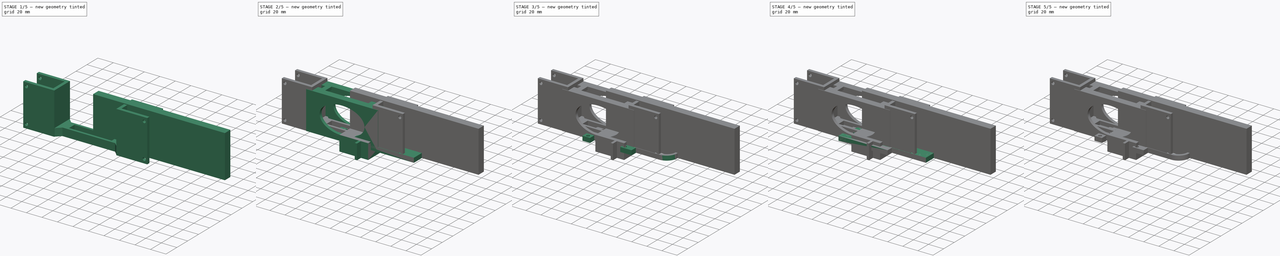
[diagram: build sequence overview — one tinted view per stage of 5, left to right]
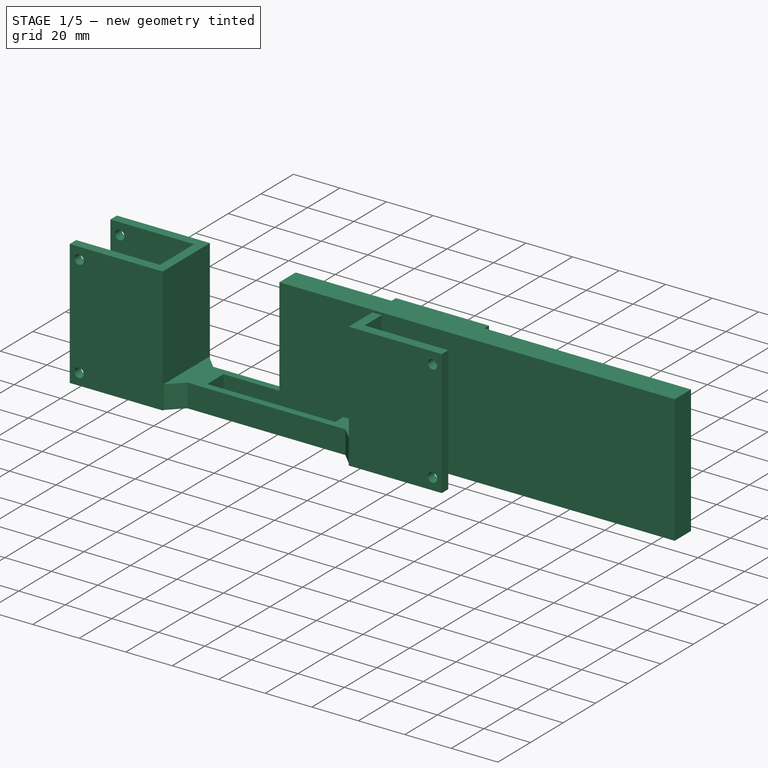
[diagram: stage 1 of 5 — iso view after this stage's code; geometry added in this stage tinted green]
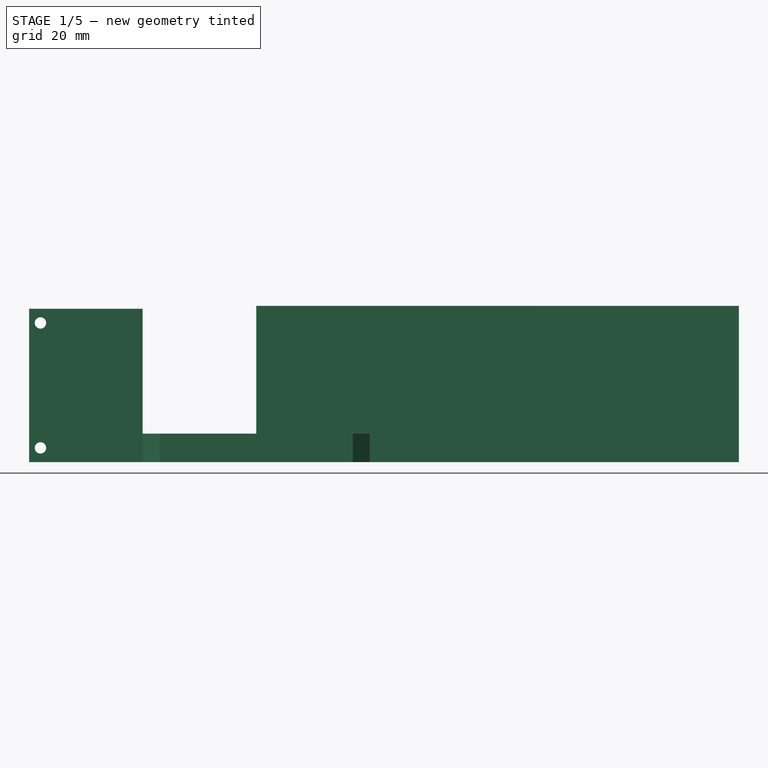
[diagram: stage 1 of 5 — front view after this stage's code; geometry added in this stage tinted green]
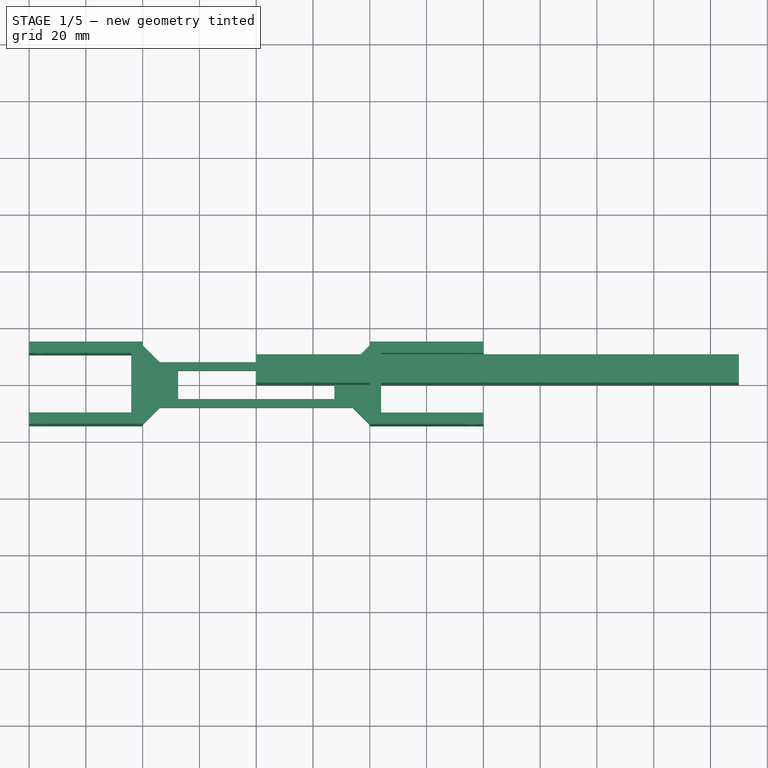
[diagram: stage 1 of 5 — top view after this stage's code; geometry added in this stage tinted green]
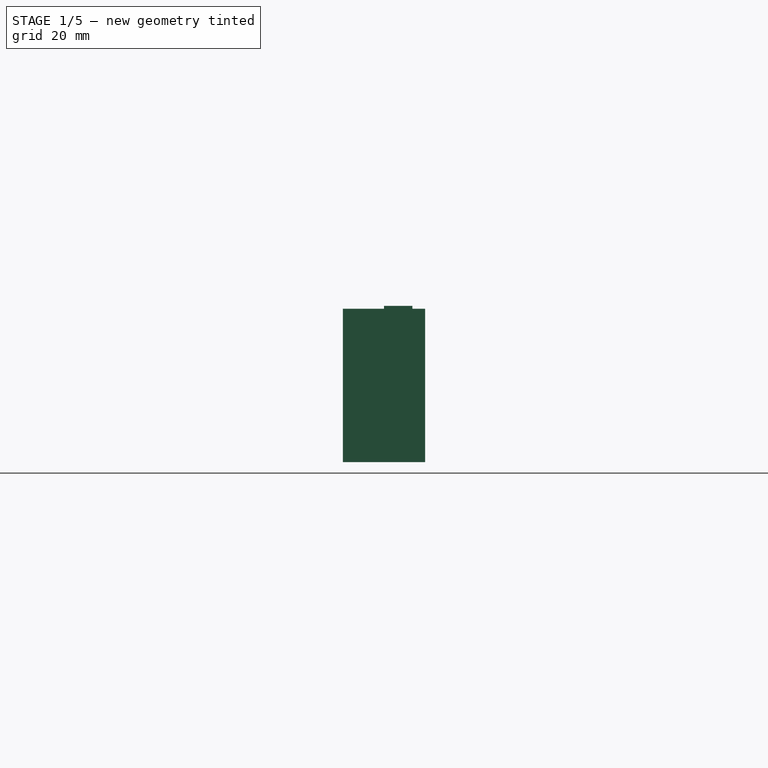
[diagram: stage 1 of 5 — right view after this stage's code; geometry added in this stage tinted green]
FCSTD DOCUMENT  (FreeCAD 0.21R33771 (Git))
Label: assembly_05
License: All rights reserved
LicenseURL: https://en.wikipedia.org/wiki/All_rights_reserved
objects: Sketcher::SketchObject×39, PartDesign::CoordinateSystem×37, App::Link×37, PartDesign::Pad×23, PartDesign::Pocket×15, PartDesign::Body×12, PartDesign::Fillet×7, App::DocumentObjectGroup×3, PartDesign::Plane×3, App::Part×2, App::FeaturePython×1, Spreadsheet::Sheet×1, PartDesign::AdditiveBox×1, PartDesign::Chamfer×1
note: 185 computed .brp shape members not serialized (recipe doc carries the construction recipe); baked Part::Feature solids carry a one-line shape summary decoded from their .brp

FEATURE [PartDesign::CoordinateSystem] Local_CS035
  AttacherType = Attacher::AttachEngine3D
  MapMode = 45
  Placement = pos=(-1.3e-15,0,2.25) rot=(0,0,1;0rad)
  Support = -> [Pad057]
FEATURE [PartDesign::CoordinateSystem] Local_CS036
  AttacherType = Attacher::AttachEngine3D
  MapMode = 45
  Placement = pos=(19,0,2.25) rot=(0,0,1;0rad)
  Support = -> [Pad057]
FEATURE [PartDesign::CoordinateSystem] Local_CS037
  AttacherType = Attacher::AttachEngine3D
  MapMode = 45
  Placement = pos=(23,0,2.25) rot=(0,0,1;0rad)
  Support = -> [Pad057]
FEATURE [PartDesign::Body] Body020  label="servo_lever"
  Group = -> [Sketch093,Pad057,Local_CS035,Local_CS036,Local_CS037]
  Origin = -> Origin022
  Tip = -> Pad057
FEATURE [Spreadsheet::Sheet] Spreadsheet  label="spreadsheet_variables"
  cells = A1='breadboard_length; B1(breadboard_length)=170; A2='breadboard_height; B2(breadboard_height)=55; A3='breadboard_width; B3(breadboard_width)=10
FEATURE [PartDesign::AdditiveBox] Box
  AttacherType = Attacher::AttachEngine3D
  Height = 55
  Length = 170
  Width = 10
  expr: Height = Spreadsheet.breadboard_height
  expr: Length = Spreadsheet.breadboard_length
  expr: Width = Spreadsheet.breadboard_width
FEATURE [App::Link] servo_lever  label="servo_lever_hip_right_hind"
  AttachedBy = #Local_CS035
  AttachedTo = upper_leg_right001#Local_CS032
  AttachmentOffset = pos=(0,0,-1) rot=(0,0,1;0rad)
  LinkPlacement = pos=(3.25,2.6e-15,-1.5e-15) rot=(-0.648814,-0.397594,0.648814;2.38473rad)
  LinkedObject = -> Body020
  Placement = pos=(3.25,2.6e-15,-1.5e-15) rot=(-0.648814,-0.397594,0.648814;2.38473rad)
  SolverId = Asm4EE
  expr: Placement = upper_leg_right001.Placement * Local_CS032.Placement * AttachmentOffset * Local_CS035.Placement ^ -1
FEATURE [App::Link] ballbearing  label="ballbearing_right_hind"
  AttachedBy = #Local_CS034
  AttachedTo = upper_leg_right001#Local_CS033
  LinkPlacement = pos=(3.5,71.0165,-36.1847) rot=(-0.648814,-0.397594,0.648814;2.38473rad)
  LinkedObject = -> Body019
  Placement = pos=(3.5,71.0165,-36.1847) rot=(-0.648814,-0.397594,0.648814;2.38473rad)
  SolverId = Asm4EE
  expr: Placement = upper_leg_right001.Placement * Local_CS033.Placement * AttachmentOffset * Local_CS034.Placement ^ -1
FEATURE [App::Link] servo001  label="servo_hip_right_hind"
  AttachedBy = #Local_CS011
  AttachedTo = Parent Assembly#LCS_Origin
  AttachmentOffset = pos=(0,0,0) rot=(-0.57735,-0.57735,0.57735;2.0944rad)
  LinkPlacement = pos=(42,-10,2.62e-14) rot=(0,-1,0;3.14159rad)
  LinkedObject = -> Body013
  Placement = pos=(42,-10,2.62e-14) rot=(0,-1,0;3.14159rad)
  SolverId = Asm4EE
  expr: Placement = LCS_Origin.Placement * AttachmentOffset * Local_CS011.Placement ^ -1
FEATURE [PartDesign::CoordinateSystem] Local_CS043  label="servo_bottom_lcs"
  AttacherType = Attacher::AttachEngine3D
  MapMode = 5
  Placement = pos=(0,0,0) rot=(0.57735,0.57735,-0.57735;4.18879rad)
  Support = -> [Pad036]
FEATURE [PartDesign::Body] Body013  label="servo"
  Group = -> [Sketch054,Pad034,DatumPlane,Sketch055,Pad035,Sketch056,Pad036,Local_CS009,Local_CS010,Local_CS011,Local_CS020,Local_CS043]
  Origin = -> Origin015
  Tip = -> Pad036
FEATURE [PartDesign::CoordinateSystem] Local_CS044
  AttacherType = Attacher::AttachEngine3D
  MapMode = 45
  Placement = pos=(-47.5,-0.0224957,25) rot=(0.57665,0.578747,0.57665;2.0923rad)
  Support = -> [Pocket034]
FEATURE [PartDesign::CoordinateSystem] Local_CS045
  AttacherType = Attacher::AttachEngine3D
  MapMode = 45
  Placement = pos=(-0.0616134,-0.0184245,0) rot=(0,0,1;1.57183rad)
  Support = -> [Pocket034]
FEATURE [PartDesign::CoordinateSystem] Local_CS046
  AttacherType = Attacher::AttachEngine3D
  MapMode = 45
  Placement = pos=(-0.0616134,-1.3e-15,50) rot=(0,0,1;1.5708rad)
  Support = -> [Pocket034]
FEATURE [PartDesign::CoordinateSystem] Local_CS047
  AttacherType = Attacher::AttachEngine3D
  MapMode = 45
  Placement = pos=(47.5,1.39e-14,25) rot=(0.57735,0.57735,0.57735;2.0944rad)
  Support = -> [Pocket034]
FEATURE [PartDesign::Body] Body022  label="leg_holder"
  Group = -> [Sketch096,Pad060,Sketch097,Pocket030,DatumPlane001,Sketch098,Pocket031,Sketch099,Pocket032,DatumPlane002,Sketch100,Pocket033,Sketch101,Pocket034,Local_CS044,Local_CS045,Local_CS046,Local_CS047]
  Origin = -> Origin024
  Tip = -> Pocket034
FEATURE [App::Link] leg_holder  label="leg_holder_back"
  AttachedBy = #Local_CS047
  AttachedTo = servo001#Local_CS043
  AttachmentOffset = pos=(0,0,-15) rot=(0.707107,-0.707107,0;3.14159rad)
  LinkPlacement = pos=(74.5,15,4.81e-14) rot=(0,0.707107,-0.707107;3.14159rad)
  LinkedObject = -> Body022
  Placement = pos=(74.5,15,4.81e-14) rot=(0,0.707107,-0.707107;3.14159rad)
  SolverId = Asm4EE
  expr: Placement = servo001.Placement * Local_CS043.Placement * AttachmentOffset * Local_CS047.Placement ^ -1
FEATURE [PartDesign::CoordinateSystem] Local_CS048
  AttacherType = Attacher::AttachEngine3D
  MapMode = 45
  Placement = pos=(170,5,27.5) rot=(0.57735,0.57735,0.57735;2.0944rad)
  Support = -> [Box]
FEATURE [PartDesign::CoordinateSystem] Local_CS049
  AttacherType = Attacher::AttachEngine3D
  MapMode = 45
  Placement = pos=(0,5,27.5) rot=(0.57735,0.57735,0.57735;2.0944rad)
  Support = -> [Box]
FEATURE [PartDesign::Body] Body021  label="breadboard"
  Group = -> [Box,Local_CS048,Local_CS049]
  Origin = -> Origin023
  Tip = -> Box
FEATURE [App::Link] breadboard  label="breadboard001"
  AttachedBy = #Local_CS048
  AttachedTo = leg_holder#Local_CS045
  AttachmentOffset = pos=(0,0,0) rot=(1,0,0;3.14159rad)
  LinkPlacement = pos=(102.056,-155,5.04673) rot=(0.577548,0.577548,-0.576954;4.1882rad)
  LinkedObject = -> Body021
  Placement = pos=(102.056,-155,5.04673) rot=(0.577548,0.577548,-0.576954;4.1882rad)
  SolverId = Asm4EE
  expr: Placement = leg_holder.Placement * Local_CS045.Placement * AttachmentOffset * Local_CS048.Placement ^ -1
FEATURE [App::Link] leg_holder001  label="leg_holder_front"
  AttachedBy = #Local_CS046
  AttachedTo = breadboard#Local_CS049
  AttachmentOffset = pos=(0,0,0) rot=(1,0,0;3.14159rad)
  LinkPlacement = pos=(74.5,-105,0.0183611) rot=(-0.000364,-0.707107,0.707107;3.14232rad)
  LinkedObject = -> Body022
  Placement = pos=(74.5,-105,0.0183611) rot=(-0.000364,-0.707107,0.707107;3.14232rad)
  SolverId = Asm4EE
  expr: Placement = breadboard.Placement * Local_CS049.Placement * AttachmentOffset * Local_CS046.Placement ^ -1
FEATURE [App::Link] servo002  label="servo_hip_right_front"
  AttachedBy = #Local_CS043
  AttachedTo = leg_holder001#Local_CS047
  AttachmentOffset = pos=(0,0,-15) rot=(0.707107,-0.707107,0;3.14159rad)
  LinkPlacement = pos=(42,-130,-0.015096) rot=(0,1,0;3.14056rad)
  LinkedObject = -> Body013
  Placement = pos=(42,-130,-0.015096) rot=(0,1,0;3.14056rad)
  SolverId = Asm4EE
  expr: Placement = leg_holder001.Placement * Local_CS047.Placement * AttachmentOffset * Local_CS043.Placement ^ -1
FEATURE [App::Link] skeloton_all002  label="skeloton_all_right_front"
  AttachedBy = #LCS_Origin002
  AttachedTo = servo002#Local_CS011
  AttachmentOffset = pos=(0,0,0) rot=(1,0,0;3.14159rad)
  LinkPlacement = pos=(3.9509e-05,-120,-0.0583329) rot=(-0.577152,-0.577152,-0.577747;4.18938rad)
  LinkedObject = -> skeloton_all
  Placement = pos=(3.9509e-05,-120,-0.0583329) rot=(-0.577152,-0.577152,-0.577747;4.18938rad)
  SolverId = Asm4EE
  expr: Placement = servo002.Placement * Local_CS011.Placement * AttachmentOffset * LCS_Origin002.Placement ^ -1
FEATURE [App::Link] upper_leg_right002  label="upper_leg_right_front"
  AttachedBy = #Local_CS032
  AttachedTo = skeloton_all002#hip_lcs
  AttachmentOffset = pos=(0,0,0) rot=(-0.57735,-0.57735,0.57735;4.18879rad)
  LinkPlacement = pos=(2.99943,-121.155,0.533267) rot=(-0.649095,-0.397766,0.648427;2.38514rad)
  LinkedObject = -> Body018
  Placement = pos=(2.99943,-121.155,0.533267) rot=(-0.649095,-0.397766,0.648427;2.38514rad)
  SolverId = Asm4EE
  expr: Placement = skeloton_all002.Placement * hip_lcs.Placement * AttachmentOffset * Local_CS032.Placement ^ -1
FEATURE [App::Link] lower_leg001  label="lower_leg_right_front"
  AttachedBy = #Local_CS039
  AttachedTo = skeloton_all002#lower_leg_lcs
  AttachmentOffset = pos=(0,4,0) rot=(1,0,0;1.5708rad)
  LinkPlacement = pos=(4.05209,-63.1479,-50.6211) rot=(-0.376709,0.846102,-0.377097;1.73612rad)
  LinkedObject = -> Body
  Placement = pos=(4.05209,-63.1479,-50.6211) rot=(-0.376709,0.846102,-0.377097;1.73612rad)
  SolverId = Asm4EE
  expr: Placement = skeloton_all002.Placement * lower_leg_lcs.Placement * AttachmentOffset * Local_CS039.Placement ^ -1
FEATURE [App::Link] servo_lever002  label="servo_lever_hip_right_front"
  AttachedBy = #Local_CS035
  AttachedTo = skeloton_all002#hip_lcs
  AttachmentOffset = pos=(0,0,0) rot=(-0.57735,-0.57735,0.57735;4.18879rad)
  LinkPlacement = pos=(2.25004,-120,-0.0560166) rot=(-0.649095,-0.397766,0.648427;2.38514rad)
  LinkedObject = -> Body020
  Placement = pos=(2.25004,-120,-0.0560166) rot=(-0.649095,-0.397766,0.648427;2.38514rad)
  SolverId = Asm4EE
  expr: Placement = skeloton_all002.Placement * hip_lcs.Placement * AttachmentOffset * Local_CS035.Placement ^ -1
FEATURE [App::Link] servo003  label="servo_knee_right_front"
  AttachedBy = #Local_CS009
  AttachedTo = upper_leg_right002#Local_CS030
  AttachmentOffset = pos=(0,0,5) rot=(1,0,0;3.14159rad)
  LinkPlacement = pos=(-32.0173,-97.9549,16.7343) rot=(-0.999998,-0.002144,-0.000515;0.47124rad)
  LinkedObject = -> Body013
  Placement = pos=(-32.0173,-97.9549,16.7343) rot=(-0.999998,-0.002144,-0.000515;0.47124rad)
  SolverId = Asm4EE
  expr: Placement = upper_leg_right002.Placement * Local_CS030.Placement * AttachmentOffset * Local_CS009.Placement ^ -1
FEATURE [App::Link] ballbearing001  label="ballbearing_right_front"
  AttachedBy = #Local_CS034
  AttachedTo = upper_leg_right002#Local_CS033
  LinkPlacement = pos=(3.53729,-48.9835,-36.2394) rot=(-0.649095,-0.397766,0.648427;2.38514rad)
  LinkedObject = -> Body019
  Placement = pos=(3.53729,-48.9835,-36.2394) rot=(-0.649095,-0.397766,0.648427;2.38514rad)
  SolverId = Asm4EE
  expr: Placement = upper_leg_right002.Placement * Local_CS033.Placement * AttachmentOffset * Local_CS034.Placement ^ -1
FEATURE [App::Link] servo_lever003  label="servo_lever_knee_right_front"
  AttachedBy = #Local_CS040
  AttachedTo = servo003#Local_CS011
  AttachmentOffset = pos=(0,0,0) rot=(0,0,-1;-1.20428rad)
  LinkPlacement = pos=(7.98739,-89.0448,12.2356) rot=(-0.674155,-0.300153,-0.67485;3.72535rad)
  LinkedObject = -> Body023
  Placement = pos=(7.98739,-89.0448,12.2356) rot=(-0.674155,-0.300153,-0.67485;3.72535rad)
  SolverId = Asm4EE
  expr: .AttachmentOffset.Rotation.Angle = Variables.right_knee * -1
  expr: Placement = servo003.Placement * Local_CS011.Placement * AttachmentOffset * Local_CS040.Placement ^ -1
FEATURE [App::Link] leg_connector001  label="leg_connector_right_front"
  AttachedBy = #Local_CS019
  AttachedTo = servo_lever003#Local_CS041
  AttachmentOffset = pos=(0,0,4) rot=(0,0,1;4.67748rad)
  LinkPlacement = pos=(13.0047,-59.9294,-4.57767) rot=(0.323581,0.889031,0.323914;1.68713rad)
  LinkedObject = -> Body012
  Placement = pos=(13.0047,-59.9294,-4.57767) rot=(0.323581,0.889031,0.323914;1.68713rad)
  SolverId = Asm4EE
  expr: .AttachmentOffset.Rotation.Angle = Variables.leg_connector
  expr: Placement = servo_lever003.Placement * Local_CS041.Placement * AttachmentOffset * Local_CS019.Placement ^ -1
FEATURE [App::Link] servo004  label="servo_hip_left_hind"
  AttachedBy = #Local_CS043
  AttachedTo = leg_holder#Local_CS044
  AttachmentOffset = pos=(0,0,15) rot=(0,0,1;4.71239rad)
  LinkPlacement = pos=(107,-10,0.0224957) rot=(1,0,0;0.00363rad)
  LinkedObject = -> Body013
  Placement = pos=(107,-10,0.0224957) rot=(1,0,0;0.00363rad)
  SolverId = Asm4EE
  expr: Placement = leg_holder.Placement * Local_CS044.Placement * AttachmentOffset * Local_CS043.Placement ^ -1
FEATURE [App::Link] skeloton_all003  label="skeloton_all_left_hind"
  AttachedBy = #LCS_Origin002
  AttachedTo = servo004#Local_CS011
  LinkPlacement = pos=(149,-6.58713e-05,0.058792) rot=(0.578048,0.575953,0.578048;2.09649rad)
  LinkedObject = -> skeloton_all
  Placement = pos=(149,-6.58713e-05,0.058792) rot=(0.578048,0.575953,0.578048;2.09649rad)
  SolverId = Asm4EE
  expr: Placement = servo004.Placement * Local_CS011.Placement * AttachmentOffset * LCS_Origin002.Placement ^ -1
FEATURE [App::Link] upper_leg_left001  label="upper_leg_left_hind"
  AttachedBy = #Local_CS029
  AttachedTo = skeloton_all003#hip_lcs
  AttachmentOffset = pos=(0,0,0) rot=(-0.57735,-0.57735,0.57735;4.18879rad)
  LinkPlacement = pos=(152,-1.15721,0.643107) rot=(0.648395,0.398958,-0.648395;3.90081rad)
  LinkedObject = -> Body017
  Placement = pos=(152,-1.15721,0.643107) rot=(0.648395,0.398958,-0.648395;3.90081rad)
  SolverId = Asm4EE
  expr: Placement = skeloton_all003.Placement * hip_lcs.Placement * AttachmentOffset * Local_CS029.Placement ^ -1
FEATURE [App::Link] servo_lever004  label="servo_lever_hip_left_back"
  AttachedBy = #Local_CS035
  AttachedTo = skeloton_all003#hip_lcs
  AttachmentOffset = pos=(0,0,0) rot=(-0.57735,-0.57735,0.57735;4.18879rad)
  LinkPlacement = pos=(151.25,-6.58713e-05,0.058792) rot=(0.648395,0.398958,-0.648395;3.90081rad)
  LinkedObject = -> Body020
  Placement = pos=(151.25,-6.58713e-05,0.058792) rot=(0.648395,0.398958,-0.648395;3.90081rad)
  SolverId = Asm4EE
  expr: Placement = skeloton_all003.Placement * hip_lcs.Placement * AttachmentOffset * Local_CS035.Placement ^ -1
FEATURE [App::Link] servo005  label="servo_knee_left_hind"
  AttachedBy = #Local_CS010
  AttachedTo = upper_leg_left001#Local_CS026
  AttachmentOffset = pos=(0,0,-5) rot=(0,0,1;0rad)
  LinkPlacement = pos=(181,21.9838,16.9643) rot=(0,0.972792,-0.23168;3.14159rad)
  LinkedObject = -> Body013
  Placement = pos=(181,21.9838,16.9643) rot=(0,0.972792,-0.23168;3.14159rad)
  SolverId = Asm4EE
  expr: Placement = upper_leg_left001.Placement * Local_CS026.Placement * AttachmentOffset * Local_CS010.Placement ^ -1
FEATURE [App::Link] servo_lever005  label="servo_lever_knee_left_hind"
  AttachedBy = #Local_CS040
  AttachedTo = servo005#Local_CS011
  AttachmentOffset = pos=(0,0,0) rot=(0,0,1;-1.20428rad)
  LinkPlacement = pos=(141,30.9103,12.4568) rot=(-0.375445,-0.847398,0.375445;1.73563rad)
  LinkedObject = -> Body023
  Placement = pos=(141,30.9103,12.4568) rot=(-0.375445,-0.847398,0.375445;1.73563rad)
  SolverId = Asm4EE
  expr: .AttachmentOffset.Rotation.Angle = Variables.right_knee * -1
  expr: Placement = servo005.Placement * Local_CS011.Placement * AttachmentOffset * Local_CS040.Placement ^ -1
FEATURE [App::Link] ballbearing002  label="ballbearing_left_hind"
  AttachedBy = #Local_CS034
  AttachedTo = upper_leg_left001#Local_CS028
  LinkPlacement = pos=(152.5,71.1473,-35.8679) rot=(0.648395,0.398958,-0.648395;3.90081rad)
  LinkedObject = -> Body019
  Placement = pos=(152.5,71.1473,-35.8679) rot=(0.648395,0.398958,-0.648395;3.90081rad)
  SolverId = Asm4EE
  expr: Placement = upper_leg_left001.Placement * Local_CS028.Placement * AttachmentOffset * Local_CS034.Placement ^ -1
FEATURE [App::Link] lower_leg002  label="lower_leg_left_hind"
  AttachedBy = #Local_CS015
  AttachedTo = skeloton_all003#lower_leg_lcs
  AttachmentOffset = pos=(0,6,0) rot=(-0.57735,-0.57735,0.57735;4.18879rad)
  LinkPlacement = pos=(145,57.0352,-50.3015) rot=(0.674768,-0.29896,-0.674768;2.56059rad)
  LinkedObject = -> Body
  Placement = pos=(145,57.0352,-50.3015) rot=(0.674768,-0.29896,-0.674768;2.56059rad)
  SolverId = Asm4EE
  expr: Placement = skeloton_all003.Placement * lower_leg_lcs.Placement * AttachmentOffset * Local_CS015.Placement ^ -1
FEATURE [App::Link] leg_connector002
  AttachedBy = #Local_CS
  AttachedTo = servo_lever005#Local_CS041
  AttachmentOffset = pos=(0,0,4) rot=(0,0,1;4.71239rad)
  LinkPlacement = pos=(136,60.9269,-3.52003) rot=(-0.338771,0.877763,0.338771;4.58238rad)
  LinkedObject = -> Body012
  Placement = pos=(136,60.9269,-3.52003) rot=(-0.338771,0.877763,0.338771;4.58238rad)
  SolverId = Asm4EE
  expr: Placement = servo_lever005.Placement * Local_CS041.Placement * AttachmentOffset * Local_CS.Placement ^ -1
FEATURE [App::Link] servo006
  AttachedBy = #Local_CS043
  AttachedTo = leg_holder001#Local_CS044
  AttachmentOffset = pos=(0,0,15) rot=(0,0,1;4.71239rad)
  LinkPlacement = pos=(107,-130,0.0743139) rot=(-0.962054,0.27286,-0.000495;6.27941rad)
  LinkedObject = -> Body013
  Placement = pos=(107,-130,0.0743139) rot=(-0.962054,0.27286,-0.000495;6.27941rad)
  SolverId = Asm4EE
  expr: Placement = leg_holder001.Placement * Local_CS044.Placement * AttachmentOffset * Local_CS043.Placement ^ -1
FEATURE [App::Link] skeloton_all004
  AttachedBy = #LCS_Origin002
  AttachedTo = servo006#Local_CS011
  LinkPlacement = pos=(149,-120,0.153847) rot=(-0.577849,-0.575755,-0.578444;4.18729rad)
  LinkedObject = -> skeloton_all
  Placement = pos=(149,-120,0.153847) rot=(-0.577849,-0.575755,-0.578444;4.18729rad)
  SolverId = Asm4EE
  expr: Placement = servo006.Placement * Local_CS011.Placement * AttachmentOffset * LCS_Origin002.Placement ^ -1
FEATURE [App::Link] upper_leg_left  label="upper_leg_left001"
  AttachedBy = #Local_CS029
  AttachedTo = skeloton_all004#hip_lcs
  AttachmentOffset = pos=(0,0,0) rot=(-0.57735,-0.57735,0.57735;4.18879rad)
  LinkPlacement = pos=(151.999,-121.157,0.74125) rot=(-0.648676,-0.39913,0.648008;2.38279rad)
  LinkedObject = -> Body017
  Placement = pos=(151.999,-121.157,0.74125) rot=(-0.648676,-0.39913,0.648008;2.38279rad)
  SolverId = Asm4EE
  expr: Placement = skeloton_all004.Placement * hip_lcs.Placement * AttachmentOffset * Local_CS029.Placement ^ -1
FEATURE [App::Link] lower_leg003
  AttachedBy = #Local_CS015
  AttachedTo = skeloton_all004#lower_leg_lcs
  AttachmentOffset = pos=(0,6,0) rot=(-0.57735,-0.57735,0.57735;4.18879rad)
  LinkPlacement = pos=(145.052,-62.9648,-50.2105) rot=(-0.675084,0.2991,0.674389;3.72229rad)
  LinkedObject = -> Body
  Placement = pos=(145.052,-62.9648,-50.2105) rot=(-0.675084,0.2991,0.674389;3.72229rad)
  SolverId = Asm4EE
  expr: Placement = skeloton_all004.Placement * lower_leg_lcs.Placement * AttachmentOffset * Local_CS015.Placement ^ -1
FEATURE [App::Link] servo007
  AttachedBy = #Local_CS010
  AttachedTo = upper_leg_left#Local_CS026
  AttachmentOffset = pos=(0,0,-5) rot=(0,0,1;0rad)
  LinkPlacement = pos=(180.982,-98.0162,17.0923) rot=(-0.000119,-0.972792,0.23168;3.14259rad)
  LinkedObject = -> Body013
  Placement = pos=(180.982,-98.0162,17.0923) rot=(-0.000119,-0.972792,0.23168;3.14259rad)
  SolverId = Asm4EE
  expr: Placement = upper_leg_left.Placement * Local_CS026.Placement * AttachmentOffset * Local_CS010.Placement ^ -1
FEATURE [App::Link] servo_lever_knee  label="servo_lever_knee001"
  AttachedBy = #Local_CS040
  AttachedTo = servo007#Local_CS011
  AttachmentOffset = pos=(0,0,0) rot=(0,0,1;-1.20428rad)
  LinkPlacement = pos=(140.987,-89.0897,12.5436) rot=(0.375499,0.847521,-0.375113;4.54668rad)
  LinkedObject = -> Body023
  Placement = pos=(140.987,-89.0897,12.5436) rot=(0.375499,0.847521,-0.375113;4.54668rad)
  SolverId = Asm4EE
  expr: .AttachmentOffset.Rotation.Angle = Variables.right_knee * -1
  expr: Placement = servo007.Placement * Local_CS011.Placement * AttachmentOffset * Local_CS040.Placement ^ -1
FEATURE [App::Link] leg_connector003
  AttachedBy = #Local_CS
  AttachedTo = servo_lever_knee#Local_CS041
  AttachmentOffset = pos=(0,0,4) rot=(0,0,1;4.71239rad)
  LinkPlacement = pos=(136.004,-59.0731,-3.43835) rot=(0.338811,-0.877867,-0.338462;1.70171rad)
  LinkedObject = -> Body012
  Placement = pos=(136.004,-59.0731,-3.43835) rot=(0.338811,-0.877867,-0.338462;1.70171rad)
  SolverId = Asm4EE
  expr: Placement = servo_lever_knee.Placement * Local_CS041.Placement * AttachmentOffset * Local_CS.Placement ^ -1
FEATURE [App::Part] Assembly
  AssemblyType = Part::Link
  Group = -> [LCS_Origin,Constraints,Variables,Configurations,skeloton_all001,upper_leg_right001,lower_leg,servo,servo_lever001,leg_connector,servo_lever,ballbearing,servo001,leg_holder,breadboard,leg_holder001,servo002,skeloton_all002,upper_leg_right002,lower_leg001,servo_lever002,servo003,ballbearing001,servo_lever003,leg_connector001,servo004,skeloton_all003,upper_leg_left001,servo_lever004,servo005,+11 more]
  Origin = -> Origin
  Type = Assembly
FEATURE [Sketcher::SketchObject] Sketch102
  FullyConstrained = true
  MapMode = 5
  Support = -> [XY_Plane028]
  sketch-geometry (8):
    g0: LineSegment StartX=-27.5 StartY=5 StartZ=0 EndX=27.5 EndY=5 EndZ=0
    g1: LineSegment StartX=27.5 StartY=5 StartZ=0 EndX=27.5 EndY=-5 EndZ=0
    g2: LineSegment StartX=27.5 StartY=-5 StartZ=0 EndX=-27.5 EndY=-5 EndZ=0
    g3: LineSegment StartX=-27.5 StartY=-5 StartZ=0 EndX=-27.5 EndY=5 EndZ=0
    g4: LineSegment StartX=-40 StartY=8 StartZ=0 EndX=40 EndY=8 EndZ=0
    g5: LineSegment StartX=40 StartY=8 StartZ=0 EndX=40 EndY=-8 EndZ=0
    g6: LineSegment StartX=40 StartY=-8 StartZ=0 EndX=-40 EndY=-8 EndZ=0
    g7: LineSegment StartX=-40 StartY=-8 StartZ=0 EndX=-40 EndY=8 EndZ=0
  constraints (20):
    c: Coincident(g0,g1)
    c: Coincident(g1,g2)
    c: Coincident(g2,g3)
    c: Coincident(g3,g0)
    c: Horizontal(g2)
    c: Vertical(g3)
    c: Coincident(g4,g5)
    c: Coincident(g5,g6)
    c: Coincident(g6,g7)
    c: Coincident(g7,g4)
    c: Horizontal(g6)
    c: Vertical(g7)
    c: DistanceX(g0,g0) = 55
    c: DistanceY(g3,g3) = 10
    c: Symmetric(g0,g0,g-2)
    c: Symmetric(g0,g1,g-1)
    c: Symmetric(g4,g4,g-2)
    c: Symmetric(g4,g5,g-1)
    c: DistanceX(g4,g4) = 80
    c: DistanceY(g5,g5) = 16
FEATURE [PartDesign::Pad] Pad061
  Direction = (0,0,1)
  Length = 10
  Length2 = 10
  Profile = -> Sketch102
  ReferenceAxis = -> Sketch102 [N_Axis]
  Type = 0
FEATURE [Sketcher::SketchObject] Sketch103
  FullyConstrained = true
  MapMode = 5
  Placement = pos=(40,0,0) rot=(0.57735,0.57735,0.57735;2.0944rad)
  Support = -> [Pad061]
  sketch-geometry (4):
    g0: LineSegment StartX=-14.5 StartY=0 StartZ=0 EndX=14.5 EndY=0 EndZ=0
    g1: LineSegment StartX=14.5 StartY=0 StartZ=0 EndX=14.5 EndY=54 EndZ=0
    g2: LineSegment StartX=14.5 StartY=54 StartZ=0 EndX=-14.5 EndY=54 EndZ=0
    g3: LineSegment StartX=-14.5 StartY=54 StartZ=0 EndX=-14.5 EndY=0 EndZ=0
  constraints (11):
    c: Coincident(g0,g1)
    c: Coincident(g1,g2)
    c: Coincident(g2,g3)
    c: Coincident(g3,g0)
    c: Horizontal(g0)
    c: Vertical(g1)
    c: Vertical(g3)
    c: PointOnObject(g0,g-1)
    c: Symmetric(g1,g2,g-2)
    c: DistanceY(g1,g1) = 54
    c: DistanceX(g2,g2) = 29
FEATURE [PartDesign::Pad] Pad062
  BaseFeature = -> Pad061
  Direction = (1,0,0)
  Length = 4
  Length2 = 10
  Profile = -> Sketch103
  ReferenceAxis = -> Sketch103 [N_Axis]
  Type = 0
FEATURE [Sketcher::SketchObject] Sketch104
  ExternalGeometry = -> [Pad062]
  FullyConstrained = true
  MapMode = 5
  Placement = pos=(44,0,0) rot=(0.57735,0.57735,0.57735;2.0944rad)
  Support = -> [Pad062]
  sketch-geometry (8):
    g0: LineSegment StartX=-14.5 StartY=54 StartZ=0 EndX=-10.5 EndY=54 EndZ=0
    g1: LineSegment StartX=-10.5 StartY=54 StartZ=0 EndX=-10.5 EndY=0 EndZ=0
    g2: LineSegment StartX=-10.5 StartY=0 StartZ=0 EndX=-14.5 EndY=0 EndZ=0
    g3: LineSegment StartX=-14.5 StartY=0 StartZ=0 EndX=-14.5 EndY=54 EndZ=0
    g4: LineSegment StartX=14.5 StartY=0 StartZ=0 EndX=10.5 EndY=0 EndZ=0
    g5: LineSegment StartX=10.5 StartY=0 StartZ=0 EndX=10.5 EndY=54 EndZ=0
    g6: LineSegment StartX=10.5 StartY=54 StartZ=0 EndX=14.5 EndY=54 EndZ=0
    g7: LineSegment StartX=14.5 StartY=54 StartZ=0 EndX=14.5 EndY=0 EndZ=0
  constraints (22):
    c: Coincident(g0,g1)
    c: Coincident(g1,g2)
    c: Coincident(g2,g3)
    c: Coincident(g3,g0)
    c: Horizontal(g0)
    c: Horizontal(g2)
    c: Vertical(g1)
    c: Vertical(g3)
    c: Coincident(g0,g-4)
    c: PointOnObject(g1,g-1)
    c: Coincident(g4,g5)
    c: Coincident(g5,g6)
    c: Coincident(g6,g7)
    c: Coincident(g7,g4)
    c: Horizontal(g4)
    c: Horizontal(g6)
    c: Vertical(g5)
    c: Vertical(g7)
    c: Coincident(g4,g-5)
    c: PointOnObject(g5,g-3)
    c: Equal(g6,g0)
    c: DistanceX(g0,g0) = 4
FEATURE [PartDesign::Pad] Pad063
  BaseFeature = -> Pad062
  Direction = (1,0,0)
  Length = 36
  Length2 = 10
  Profile = -> Sketch104
  ReferenceAxis = -> Sketch104 [N_Axis]
  Type = 0
FEATURE [Sketcher::SketchObject] Sketch105
  ExternalGeometry = -> [Pad063]
  FullyConstrained = true
  MapMode = 5
  Placement = pos=(0,14.5,0) rot=(0,0.707107,0.707107;3.14159rad)
  Support = -> [Pad063]
  sketch-geometry (2):
    g0: Circle CenterX=-76 CenterY=49 CenterZ=0 NormalX=0 NormalY=0 NormalZ=1 AngleXU=0 Radius=2
    g1: Circle CenterX=-76 CenterY=5 CenterZ=0 NormalX=0 NormalY=0 NormalZ=1 AngleXU=0 Radius=2
  constraints (6):
    c: DistanceX(g0,g-5) = 32
    c: DistanceX(g1,g-5) = 32
    c: Diameter(g0) = 4
    c: Diameter(g1) = 4
    c: DistanceY(g1,g0) = 44
    c: DistanceY(g-4,g1) = 5
FEATURE [PartDesign::Pocket] Pocket035
  BaseFeature = -> Pad063
  Direction = (0,-1,2e-16)
  Length = 5
  Length2 = 5
  Profile = -> Sketch105
  ReferenceAxis = -> Sketch105 [N_Axis]
  Type = 1
FEATURE [Sketcher::SketchObject] Sketch106
  ExternalGeometry = -> [Sketch103]
  FullyConstrained = false
  MapMode = 5
  Placement = pos=(-40,0,0) rot=(0.57735,-0.57735,-0.57735;2.0944rad)
  Support = -> [Pocket035]
  sketch-geometry (4):
    g0: LineSegment StartX=-14.5 StartY=54 StartZ=0 EndX=14.4657 EndY=54 EndZ=0
    g1: LineSegment StartX=14.4657 StartY=54 StartZ=0 EndX=14.4657 EndY=0 EndZ=0
    g2: LineSegment StartX=14.4657 StartY=0 StartZ=0 EndX=-14.5 EndY=0 EndZ=0
    g3: LineSegment StartX=-14.5 StartY=0 StartZ=0 EndX=-14.5 EndY=54 EndZ=0
  constraints (10):
    c: Coincident(g0,g1)
    c: Coincident(g1,g2)
    c: Coincident(g2,g3)
    c: Coincident(g3,g0)
    c: Horizontal(g0)
    c: Horizontal(g2)
    c: Vertical(g1)
    c: Vertical(g3)
    c: Coincident(g0,g-4)
    c: PointOnObject(g1,g-1)
FEATURE [PartDesign::Pad] Pad064
  BaseFeature = -> Pocket035
  Direction = (-1,0,0)
  Length = 4
  Length2 = 10
  Profile = -> Sketch106
  ReferenceAxis = -> Sketch106 [N_Axis]
  Type = 0
FEATURE [Sketcher::SketchObject] Sketch107
  ExternalGeometry = -> [Pad064]
  FullyConstrained = true
  MapMode = 5
  Placement = pos=(-44,0,0) rot=(0.57735,-0.57735,-0.57735;2.0944rad)
  Support = -> [Pad064]
  sketch-geometry (8):
    g0: LineSegment StartX=-14.5 StartY=54 StartZ=0 EndX=-10.5 EndY=54 EndZ=0
    g1: LineSegment StartX=-10.5 StartY=54 StartZ=0 EndX=-10.5 EndY=0 EndZ=0
    g2: LineSegment StartX=-10.5 StartY=0 StartZ=0 EndX=-14.5 EndY=0 EndZ=0
    g3: LineSegment StartX=-14.5 StartY=0 StartZ=0 EndX=-14.5 EndY=54 EndZ=0
    g4: LineSegment StartX=14.4657 StartY=0 StartZ=0 EndX=10.4657 EndY=0 EndZ=0
    g5: LineSegment StartX=10.4657 StartY=0 StartZ=0 EndX=10.4657 EndY=54 EndZ=0
    g6: LineSegment StartX=10.4657 StartY=54 StartZ=0 EndX=14.4657 EndY=54 EndZ=0
    g7: LineSegment StartX=14.4657 StartY=54 StartZ=0 EndX=14.4657 EndY=0 EndZ=0
  constraints (22):
    c: Coincident(g0,g1)
    c: Coincident(g1,g2)
    c: Coincident(g2,g3)
    c: Coincident(g3,g0)
    c: Horizontal(g0)
    c: Horizontal(g2)
    c: Vertical(g1)
    c: Vertical(g3)
    c: Coincident(g0,g-5)
    c: PointOnObject(g1,g-6)
    c: Coincident(g4,g5)
    c: Coincident(g5,g6)
    c: Coincident(g6,g7)
    c: Coincident(g7,g4)
    c: Horizontal(g4)
    c: Horizontal(g6)
    c: Vertical(g5)
    c: Vertical(g7)
    c: Coincident(g4,g-6)
    c: PointOnObject(g5,g-3)
    c: Equal(g6,g0)
    c: DistanceX(g6,g6) = 4
FEATURE [PartDesign::Pad] Pad065
  BaseFeature = -> Pad064
  Direction = (-1,0,0)
  Length = 36
  Length2 = 10
  Profile = -> Sketch107
  ReferenceAxis = -> Sketch107 [N_Axis]
  Type = 0
FEATURE [Sketcher::SketchObject] Sketch108
  ExternalGeometry = -> [Pad065]
  FullyConstrained = true
  MapMode = 5
  Placement = pos=(0,14.5,0) rot=(0,0.707107,0.707107;3.14159rad)
  Support = -> [Pad065]
  sketch-geometry (2):
    g0: Circle CenterX=76 CenterY=49 CenterZ=0 NormalX=0 NormalY=0 NormalZ=1 AngleXU=0 Radius=2
    g1: Circle CenterX=76 CenterY=5 CenterZ=0 NormalX=0 NormalY=0 NormalZ=1 AngleXU=0 Radius=2
  constraints (4):
    c: Diameter(g0) = 4
    c: Diameter(g1) = 4
    c: Symmetric(g0,g-3,g-2)
    c: Symmetric(g1,g-4,g-2)
FEATURE [PartDesign::Pocket] Pocket036
  BaseFeature = -> Pad065
  Direction = (0,-1,2e-16)
  Length = 5
  Length2 = 5
  Profile = -> Sketch108
  ReferenceAxis = -> Sketch108 [N_Axis]
  Type = 1
FEATURE [PartDesign::Chamfer] Chamfer
  Angle = 45
  Base = -> Pocket036 [Edge38,Edge14,Edge16,Edge47]
  BaseFeature = -> Pocket036
  ChamferType = 0
  FlipDirection = false
  Size = 6
  Size2 = 1
  SupportTransform = false
  UseAllEdges = false
FEATURE [PartDesign::Body] Body024  label="leg_holder_breadboard_test"
  Group = -> [Sketch102,Pad061,Sketch103,Pad062,Sketch104,Pad063,Sketch105,Pocket035,Sketch106,Pad064,Sketch107,Pad065,Sketch108,Pocket036,Chamfer]
  Origin = -> Origin028
  Tip = -> Chamfer
FEATURE [App::DocumentObjectGroup] Parts
  Group = -> [Body,Body012,Body013,Body016,Body017,Body018,Body019,Body020,Spreadsheet,Body021,Body022,skeloton_all,Body023,Body024]
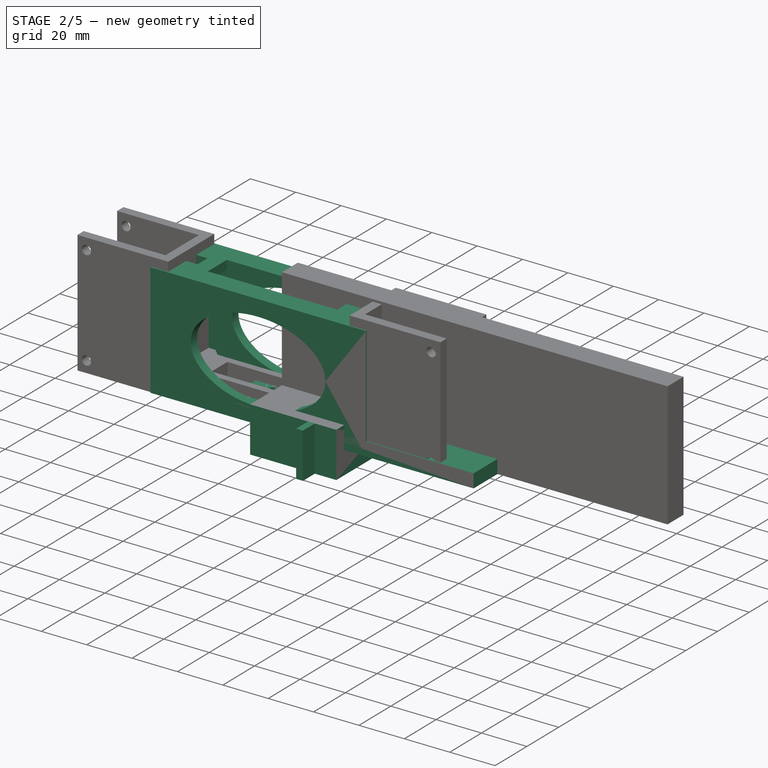
[diagram: stage 2 of 5 — iso view after this stage's code; geometry added in this stage tinted green]
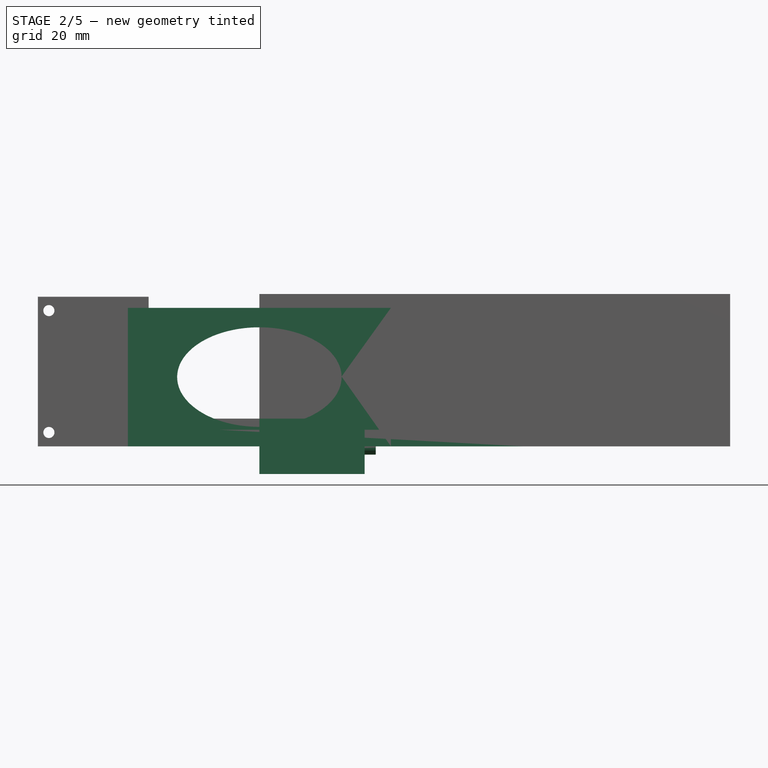
[diagram: stage 2 of 5 — front view after this stage's code; geometry added in this stage tinted green]
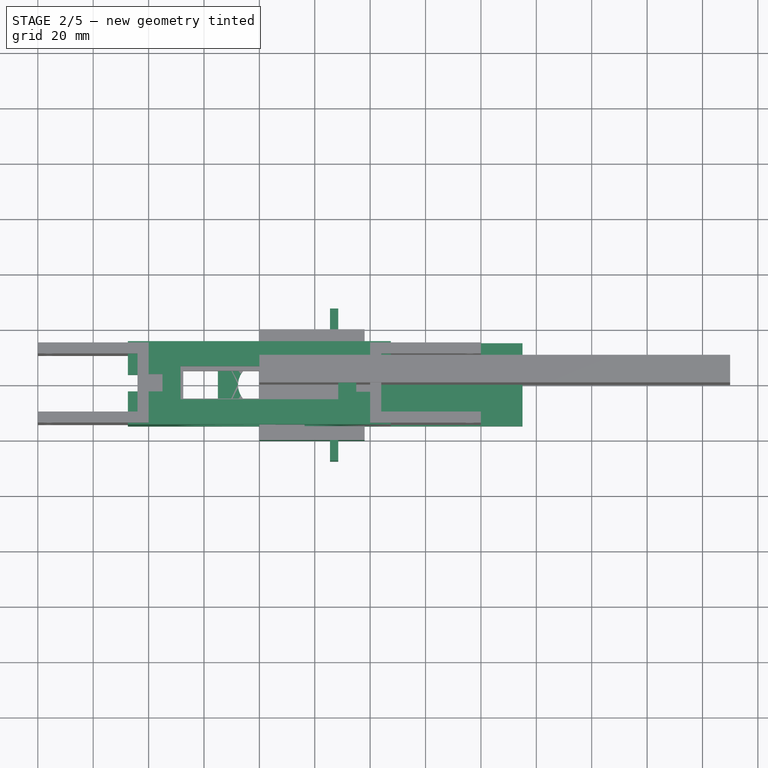
[diagram: stage 2 of 5 — top view after this stage's code; geometry added in this stage tinted green]
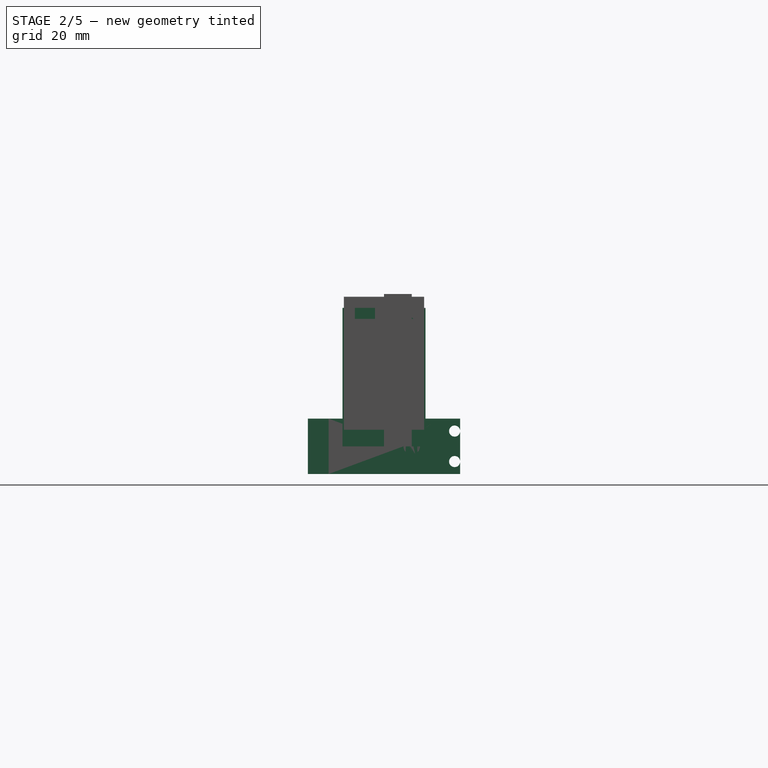
[diagram: stage 2 of 5 — right view after this stage's code; geometry added in this stage tinted green]
FEATURE [PartDesign::CoordinateSystem] Local_CS
  AttacherType = Attacher::AttachEngine3D
  MapMode = 45
  Placement = pos=(32,0,1) rot=(0,0,1;0rad)
  Support = -> [Fillet]
FEATURE [PartDesign::CoordinateSystem] Local_CS019
  AttacherType = Attacher::AttachEngine3D
  MapMode = 45
  Placement = pos=(-32,0,1) rot=(0,0,1;0rad)
  Support = -> [Fillet]
FEATURE [PartDesign::Body] Body012  label="leg_connector"
  Group = -> [Sketch049,Pad030,Sketch050,Pocket023,Fillet,Local_CS,Local_CS019]
  Origin = -> Origin014
  Tip = -> Fillet
FEATURE [PartDesign::Plane] DatumPlane
  AttachmentOffset = pos=(0,0,25.5) rot=(0,0,1;0rad)
  Length = 65.4881
  MapMode = 5
  Placement = pos=(25.5,-5.7e-15,5.7e-15) rot=(0.57735,0.57735,0.57735;2.0944rad)
  ResizeMode = 0
  Support = -> [YZ_Plane015]
  Width = 60.4881
FEATURE [Sketcher::SketchObject] Sketch055
  FullyConstrained = true
  MapMode = 5
  Placement = pos=(25.5,-5.7e-15,5.7e-15) rot=(0.57735,0.57735,0.57735;2.0944rad)
  Support = -> [DatumPlane]
  sketch-geometry (8):
    g0: LineSegment StartX=-27.5 StartY=10 StartZ=0 EndX=27.5 EndY=10 EndZ=0
    g1: LineSegment StartX=27.5 StartY=10 StartZ=0 EndX=27.5 EndY=-10 EndZ=0
    g2: LineSegment StartX=27.5 StartY=-10 StartZ=0 EndX=-27.5 EndY=-10 EndZ=0
    g3: LineSegment StartX=-27.5 StartY=-10 StartZ=0 EndX=-27.5 EndY=10 EndZ=0
    g4: Circle CenterX=-25.5 CenterY=5.5 CenterZ=0 NormalX=0 NormalY=0 NormalZ=1 AngleXU=0 Radius=2
    g5: Circle CenterX=-25.5 CenterY=-5.5 CenterZ=0 NormalX=0 NormalY=0 NormalZ=1 AngleXU=0 Radius=2
    g6: Circle CenterX=25.5 CenterY=5.5 CenterZ=0 NormalX=0 NormalY=0 NormalZ=1 AngleXU=0 Radius=2
    g7: Circle CenterX=25.5 CenterY=-5.5 CenterZ=0 NormalX=0 NormalY=0 NormalZ=1 AngleXU=0 Radius=2
  constraints (22):
    c: Coincident(g0,g1)
    c: Coincident(g1,g2)
    c: Coincident(g2,g3)
    c: Coincident(g3,g0)
    c: Horizontal(g2)
    c: Vertical(g3)
    c: Symmetric(g0,g0,g-2)
    c: Symmetric(g0,g1,g-1)
    c: DistanceY(g1,g1) = 20
    c: DistanceX(g0,g0) = 55
    c: Diameter(g4) = 4
    c: Diameter(g5) = 4
    c: Diameter(g6) = 4
    c: Diameter(g7) = 4
    c: DistanceY(g4,g0) = 4.5
    c: DistanceY(g6,g0) = 4.5
    c: DistanceY(g2,g5) = 4.5
    c: DistanceY(g1,g7) = 4.5
    c: DistanceX(g0,g4) = 2
    c: DistanceX(g2,g5) = 2
    c: DistanceX(g6,g0) = 2
    c: DistanceX(g7,g1) = 2
FEATURE [Sketcher::SketchObject] Sketch054
  FullyConstrained = true
  MapMode = 5
  Placement = pos=(0,0,0) rot=(0.57735,0.57735,0.57735;2.0944rad)
  Support = -> [YZ_Plane015]
  sketch-geometry (4):
    g0: LineSegment StartX=-20 StartY=10 StartZ=0 EndX=20 EndY=10 EndZ=0
    g1: LineSegment StartX=20 StartY=10 StartZ=0 EndX=20 EndY=-10 EndZ=0
    g2: LineSegment StartX=20 StartY=-10 StartZ=0 EndX=-20 EndY=-10 EndZ=0
    g3: LineSegment StartX=-20 StartY=-10 StartZ=0 EndX=-20 EndY=10 EndZ=0
  constraints (10):
    c: Coincident(g0,g1)
    c: Coincident(g1,g2)
    c: Coincident(g2,g3)
    c: Coincident(g3,g0)
    c: Horizontal(g2)
    c: Vertical(g3)
    c: Symmetric(g0,g0,g-2)
    c: Symmetric(g0,g1,g-1)
    c: DistanceX(g0,g0) = 40
    c: DistanceY(g1,g1) = 20
FEATURE [PartDesign::Pad] Pad034
  Direction = (1,-2e-16,3e-16)
  Length = 38
  Length2 = 10
  Placement = pos=(0,0,0) rot=(0.57735,0.57735,0.57735;2.0944rad)
  Profile = -> Sketch054
  ReferenceAxis = -> Sketch054 [N_Axis]
  Type = 0
FEATURE [PartDesign::Pad] Pad035
  BaseFeature = -> Pad034
  Direction = (1,-1e-16,1e-16)
  Length = 3
  Length2 = 10
  Placement = pos=(0,0,0) rot=(0.57735,0.57735,0.57735;2.0944rad)
  Profile = -> Sketch055
  ReferenceAxis = -> Sketch055 [N_Axis]
  Type = 0
FEATURE [Sketcher::SketchObject] Sketch056
  ExternalGeometry = -> [Pad035]
  FullyConstrained = true
  MapMode = 5
  Placement = pos=(38,-8.4e-15,8.4e-15) rot=(0.57735,0.57735,0.57735;2.0944rad)
  Support = -> [Pad035]
  sketch-geometry (1):
    g0: Circle CenterX=10 CenterY=0 CenterZ=0 NormalX=0 NormalY=0 NormalZ=1 AngleXU=0 Radius=3
  constraints (3):
    c: PointOnObject(g0,g-1)
    c: Diameter(g0) = 6
    c: DistanceX(g0,g-3) = 10
FEATURE [PartDesign::Pad] Pad036
  BaseFeature = -> Pad035
  Direction = (1,-9e-16,6e-16)
  Length = 4
  Length2 = 10
  Placement = pos=(0,0,0) rot=(0.57735,0.57735,0.57735;2.0944rad)
  Profile = -> Sketch056
  ReferenceAxis = -> Sketch056 [N_Axis]
  Type = 0
FEATURE [PartDesign::CoordinateSystem] Local_CS025
  AttacherType = Attacher::AttachEngine3D
  MapMode = 45
  Placement = pos=(0,-3,1.2e-15) rot=(0,0.707107,0.707107;3.14159rad)
  Support = -> [Pad049]
FEATURE [PartDesign::Body] Body016  label="connector_bolt"
  Group = -> [Sketch077,Pad048,Sketch078,Pad049,Local_CS025]
  Origin = -> Origin018
  Tip = -> Pad049
FEATURE [Sketcher::SketchObject] Sketch084
  FullyConstrained = false
  MapMode = 5
  Placement = pos=(0,0,0) rot=(1,0,0;3.14159rad)
  sketch-geometry (4):
    g0: LineSegment StartX=13.6097 StartY=7.7 StartZ=0 EndX=28.6097 EndY=7.7 EndZ=0
    g1: LineSegment StartX=28.6097 StartY=7.7 StartZ=0 EndX=28.6097 EndY=-7.7 EndZ=0
    g2: LineSegment StartX=28.6097 StartY=-7.7 StartZ=0 EndX=13.6097 EndY=-7.7 EndZ=0
    g3: LineSegment StartX=13.6097 StartY=-7.7 StartZ=0 EndX=13.6097 EndY=7.7 EndZ=0
  constraints (8):
    c: Coincident(g0,g1)
    c: Coincident(g1,g2)
    c: Coincident(g2,g3)
    c: Coincident(g3,g0)
    c: Horizontal(g0)
    c: Horizontal(g2)
    c: Vertical(g1)
    c: Vertical(g3)
FEATURE [Sketcher::SketchObject] Sketch079
  FullyConstrained = false
  MapMode = 5
  Support = -> [XY_Plane019]
  sketch-geometry (12):
    g0: ArcOfCircle CenterX=0 CenterY=0 CenterZ=0 NormalX=0 NormalY=0 NormalZ=1 AngleXU=0 Radius=7.7 StartAngle=1.5708 EndAngle=4.71239
    g1: LineSegment StartX=28.6097 StartY=-3.8 StartZ=0 EndX=13.6097 EndY=-3.8 EndZ=0
    g2: LineSegment StartX=13.6097 StartY=3.8 StartZ=0 EndX=28.6097 EndY=3.8 EndZ=0
    g3: LineSegment StartX=28.6097 StartY=3.8 StartZ=0 EndX=28.6097 EndY=-3.8 EndZ=0
    g4: LineSegment StartX=-1.2e-15 StartY=7.7 StartZ=0 EndX=13.6097 EndY=7.7 EndZ=0
    g5: LineSegment StartX=13.6097 StartY=7.7 StartZ=0 EndX=13.6097 EndY=3.8 EndZ=0
    g6: LineSegment StartX=-1.4e-15 StartY=-7.7 StartZ=0 EndX=13.6097 EndY=-7.7 EndZ=0
    g7: LineSegment StartX=13.6097 StartY=-7.7 StartZ=0 EndX=13.6097 EndY=-3.8 EndZ=0
    g8: LineSegment StartX=-15 StartY=15 StartZ=0 EndX=95 EndY=15 EndZ=0
    g9: LineSegment StartX=95 StartY=15 StartZ=0 EndX=95 EndY=-15 EndZ=0
    g10: LineSegment StartX=95 StartY=-15 StartZ=0 EndX=-15 EndY=-15 EndZ=0
    g11: LineSegment StartX=-15 StartY=-15 StartZ=0 EndX=-15 EndY=15 EndZ=0
  constraints (31):
    c: Coincident(g0,g-1)
    c: Diameter(g0) = 15.4
    c: Coincident(g2,g3)
    c: Coincident(g3,g1)
    c: Horizontal(g1)
    c: Horizontal(g2)
    c: Symmetric(g1,g2,g-1)
    c: DistanceY(g3,g3) = 7.6
    c: Horizontal(g4)
    c: Coincident(g4,g5)
    c: Vertical(g5)
    c: DistanceX(g5,g2) = 15
    c: Horizontal(g6)
    c: Coincident(g6,g7)
    c: Vertical(g7)
    c: DistanceX(g7,g1) = 15
    c: Tangent(g0,g4) = 1.5708
    c: Coincident(g2,g5)
    c: Coincident(g1,g7)
    c: Tangent(g0,g6) = -1.5708
    c: Coincident(g8,g9)
    c: Coincident(g9,g10)
    c: Coincident(g10,g11)
    c: Coincident(g11,g8)
    c: Horizontal(g8)
    c: Horizontal(g10)
    c: Vertical(g9)
    c: Symmetric(g8,g10,g-1)
    c: DistanceY(g11,g11) = 30
    c: DistanceX(g10,g-1) = 15
    c: DistanceX(g-1,g9) = 95
FEATURE [PartDesign::Pad] Pad050
  Direction = (0,0,1)
  Length = 6
  Length2 = 10
  Profile = -> Sketch079
  ReferenceAxis = -> Sketch079 [N_Axis]
  Type = 0
FEATURE [PartDesign::CoordinateSystem] Local_CS040
  AttacherType = Attacher::AttachEngine3D
  MapMode = 45
  Placement = pos=(-9e-16,0,2) rot=(0,0,1;0rad)
  Support = -> [Pad059]
FEATURE [PartDesign::CoordinateSystem] Local_CS041
  AttacherType = Attacher::AttachEngine3D
  MapMode = 45
  Placement = pos=(11.5,0,2) rot=(0,0,1;0rad)
  Support = -> [Pad059]
FEATURE [PartDesign::CoordinateSystem] Local_CS042
  AttacherType = Attacher::AttachEngine3D
  MapMode = 45
  Placement = pos=(4.42894,2e-15,0) rot=(0,0,1;1.5708rad)
  Support = -> [Pad059]
FEATURE [PartDesign::Body] Body023  label="servo_lever_knee"
  Group = -> [Sketch095,Pad059,Local_CS040,Local_CS041,Local_CS042]
  Origin = -> Origin027
  Tip = -> Pad059
FEATURE [App::Link] servo  label="servo_knee_right_hind"
  AttachedBy = #Local_CS009
  AttachedTo = upper_leg_right001#Local_CS030
  AttachmentOffset = pos=(0,0,5) rot=(1,0,0;3.14159rad)
  LinkPlacement = pos=(-32,22.0451,16.8256) rot=(-1,0,0;0.471239rad)
  LinkedObject = -> Body013
  Placement = pos=(-32,22.0451,16.8256) rot=(-1,0,0;0.471239rad)
  SolverId = Asm4EE
  expr: Placement = upper_leg_right001.Placement * Local_CS030.Placement * AttachmentOffset * Local_CS009.Placement ^ -1
FEATURE [App::Link] servo_lever001  label="servo_lever_knee_right_hind"
  AttachedBy = #Local_CS040
  AttachedTo = servo#Local_CS011
  AttachmentOffset = pos=(0,0,0) rot=(0,0,-1;-1.20428rad)
  LinkPlacement = pos=(8,30.9552,12.2857) rot=(-0.674471,-0.300294,-0.674471;3.72505rad)
  LinkedObject = -> Body023
  Placement = pos=(8,30.9552,12.2857) rot=(-0.674471,-0.300294,-0.674471;3.72505rad)
  SolverId = Asm4EE
  expr: .AttachmentOffset.Rotation.Angle = Variables.right_knee * -1
  expr: Placement = servo.Placement * Local_CS011.Placement * AttachmentOffset * Local_CS040.Placement ^ -1
FEATURE [App::Link] leg_connector  label="leg_connector_right_hind"
  AttachedBy = #Local_CS019
  AttachedTo = servo_lever001#Local_CS041
  AttachmentOffset = pos=(0,0,4) rot=(0,0,1;4.67748rad)
  LinkPlacement = pos=(13,60.0706,-4.53272) rot=(0.323616,0.889126,0.323616;1.68804rad)
  LinkedObject = -> Body012
  Placement = pos=(13,60.0706,-4.53272) rot=(0.323616,0.889126,0.323616;1.68804rad)
  SolverId = Asm4EE
  expr: .AttachmentOffset.Rotation.Angle = Variables.leg_connector
  expr: Placement = servo_lever001.Placement * Local_CS041.Placement * AttachmentOffset * Local_CS019.Placement ^ -1
FEATURE [Sketcher::SketchObject] Sketch096
  FullyConstrained = true
  MapMode = 5
  Support = -> [XY_Plane024]
  expr: Constraints[6] = Spreadsheet.breadboard_height + 40
  expr: Constraints[9] = 30
  sketch-geometry (4):
    g0: LineSegment StartX=-47.5 StartY=15 StartZ=0 EndX=47.5 EndY=15 EndZ=0
    g1: LineSegment StartX=47.5 StartY=15 StartZ=0 EndX=47.5 EndY=-15 EndZ=0
    g2: LineSegment StartX=47.5 StartY=-15 StartZ=0 EndX=-47.5 EndY=-15 EndZ=0
    g3: LineSegment StartX=-47.5 StartY=-15 StartZ=0 EndX=-47.5 EndY=15 EndZ=0
  constraints (10):
    c: Coincident(g0,g1)
    c: Coincident(g1,g2)
    c: Coincident(g2,g3)
    c: Coincident(g3,g0)
    c: Horizontal(g2)
    c: Vertical(g3)
    c: DistanceX(g0,g0) = 95
    c: Symmetric(g0,g0,g-2)
    c: Symmetric(g0,g1,g-1)
    c: DistanceY(g1,g1) = 30
FEATURE [PartDesign::Pad] Pad060
  Direction = (0,0,1)
  Length = 50
  Length2 = 10
  Profile = -> Sketch096
  ReferenceAxis = -> Sketch096 [N_Axis]
  Type = 0
FEATURE [Sketcher::SketchObject] Sketch097
  FullyConstrained = true
  MapMode = 5
  Support = -> [XY_Plane024]
  expr: Constraints[8] = Spreadsheet.breadboard_height + 2
  expr: Constraints[9] = Spreadsheet.breadboard_width + 2
  sketch-geometry (4):
    g0: LineSegment StartX=-28.5 StartY=6 StartZ=0 EndX=28.5 EndY=6 EndZ=0
    g1: LineSegment StartX=28.5 StartY=6 StartZ=0 EndX=28.5 EndY=-6 EndZ=0
    g2: LineSegment StartX=28.5 StartY=-6 StartZ=0 EndX=-28.5 EndY=-6 EndZ=0
    g3: LineSegment StartX=-28.5 StartY=-6 StartZ=0 EndX=-28.5 EndY=6 EndZ=0
  constraints (10):
    c: Coincident(g0,g1)
    c: Coincident(g1,g2)
    c: Coincident(g2,g3)
    c: Coincident(g3,g0)
    c: Horizontal(g2)
    c: Vertical(g1)
    c: Symmetric(g0,g0,g-2)
    c: Symmetric(g0,g2,g-1)
    c: DistanceX(g0,g0) = 57
    c: DistanceY(g3,g3) = 12
FEATURE [PartDesign::Pocket] Pocket030
  BaseFeature = -> Pad060
  Direction = (0,0,-1)
  Length = 5
  Length2 = 5
  Midplane = true
  Profile = -> Sketch097
  ReferenceAxis = -> Sketch097 [N_Axis]
  Type = 1
FEATURE [PartDesign::Plane] DatumPlane001
  AttachmentOffset = pos=(0,0,49) rot=(0,0,1;0rad)
  Length = 62.2474
  MapMode = 5
  Placement = pos=(49,-1.09e-14,1.09e-14) rot=(0.57735,0.57735,0.57735;2.0944rad)
  ResizeMode = 0
  Support = -> [YZ_Plane024]
  Width = 87.2474
FEATURE [Sketcher::SketchObject] Sketch098
  ExternalGeometry = -> [Pocket030]
  FullyConstrained = true
  MapMode = 5
  Placement = pos=(49,-1.09e-14,1.09e-14) rot=(0.57735,0.57735,0.57735;2.0944rad)
  Support = -> [DatumPlane001]
  sketch-geometry (4):
    g0: LineSegment StartX=-11 StartY=46 StartZ=0 EndX=11 EndY=46 EndZ=0
    g1: LineSegment StartX=11 StartY=46 StartZ=0 EndX=11 EndY=4 EndZ=0
    g2: LineSegment StartX=11 StartY=4 StartZ=0 EndX=-11 EndY=4 EndZ=0
    g3: LineSegment StartX=-11 StartY=4 StartZ=0 EndX=-11 EndY=46 EndZ=0
  constraints (12):
    c: Coincident(g0,g1)
    c: Coincident(g1,g2)
    c: Coincident(g2,g3)
    c: Coincident(g3,g0)
    c: Horizontal(g2)
    c: Vertical(g1)
    c: Vertical(g3)
    c: DistanceY(g1,g1) = 42
    c: Symmetric(g0,g0,g-2)
    c: DistanceX(g2,g1) = 22
    c: DistanceY(g-4,g-4) = 50
    c: DistanceY(g0,g-4) = 4
FEATURE [PartDesign::Pocket] Pocket031
  BaseFeature = -> Pocket030
  Direction = (-1,1e-16,-1e-16)
  Length = 5
  Length2 = 5
  Profile = -> Sketch098
  ReferenceAxis = -> Sketch098 [N_Axis]
  Type = 1
FEATURE [Sketcher::SketchObject] Sketch099
  FullyConstrained = false
  MapMode = 5
  Placement = pos=(49,-1.09e-14,1.09e-14) rot=(0.57735,0.57735,0.57735;2.0944rad)
  Support = -> [DatumPlane001]
  sketch-geometry (8):
    g0: LineSegment StartX=-3.26345 StartY=51.3519 StartZ=0 EndX=3.26345 EndY=51.3519 EndZ=0
    g1: LineSegment StartX=3.26345 StartY=51.3519 StartZ=0 EndX=3.26345 EndY=44.9769 EndZ=0
    g2: LineSegment StartX=3.26345 StartY=44.9769 StartZ=0 EndX=-3.26345 EndY=44.9769 EndZ=0
    g3: LineSegment StartX=-3.26345 StartY=44.9769 StartZ=0 EndX=-3.26345 EndY=51.3519 EndZ=0
    g4: LineSegment StartX=-3.26345 StartY=5.76119 StartZ=0 EndX=3.26345 EndY=5.76119 EndZ=0
    g5: LineSegment StartX=3.26345 StartY=5.76119 StartZ=0 EndX=3.26345 EndY=-3.31831 EndZ=0
    g6: LineSegment StartX=3.26345 StartY=-3.31831 StartZ=0 EndX=-3.26345 EndY=-3.31831 EndZ=0
    g7: LineSegment StartX=-3.26345 StartY=-3.31831 StartZ=0 EndX=-3.26345 EndY=5.76119 EndZ=0
  constraints (17):
    c: Coincident(g0,g1)
    c: Coincident(g1,g2)
    c: Coincident(g2,g3)
    c: Coincident(g3,g0)
    c: Horizontal(g2)
    c: Vertical(g1)
    c: Vertical(g3)
    c: Coincident(g4,g5)
    c: Coincident(g5,g6)
    c: Coincident(g6,g7)
    c: Coincident(g7,g4)
    c: Horizontal(g6)
    c: Vertical(g5)
    c: Vertical(g7)
    c: Symmetric(g4,g4,g-2)
    c: Symmetric(g0,g0,g-2)
    c: Equal(g0,g6)
FEATURE [PartDesign::Pocket] Pocket032
  BaseFeature = -> Pocket031
  Direction = (-1,1e-16,-1e-16)
  Length = 14
  Length2 = 5
  Profile = -> Sketch099
  ReferenceAxis = -> Sketch099 [N_Axis]
  Type = 0
FEATURE [PartDesign::Plane] DatumPlane002
  AttachmentOffset = pos=(0,0,-48) rot=(0,0,1;0rad)
  Length = 62.2474
  MapMode = 5
  Placement = pos=(-48,1.07e-14,-1.07e-14) rot=(0.57735,0.57735,0.57735;2.0944rad)
  ResizeMode = 0
  Support = -> [YZ_Plane024]
  Width = 87.2474
FEATURE [Sketcher::SketchObject] Sketch100
  FullyConstrained = false
  MapMode = 5
  Placement = pos=(-48,1.07e-14,-1.07e-14) rot=(0.57735,0.57735,0.57735;2.0944rad)
  Support = -> [DatumPlane002]
  sketch-geometry (8):
    g0: LineSegment StartX=-3.14361 StartY=50.7441 StartZ=0 EndX=3.14361 EndY=50.7441 EndZ=0
    g1: LineSegment StartX=3.14361 StartY=50.7441 StartZ=0 EndX=3.14361 EndY=40.7441 EndZ=0
    g2: LineSegment StartX=3.14361 StartY=40.7441 StartZ=0 EndX=-3.14361 EndY=40.7441 EndZ=0
    g3: LineSegment StartX=-3.14361 StartY=40.7441 StartZ=0 EndX=-3.14361 EndY=50.7441 EndZ=0
    g4: LineSegment StartX=-2.67337 StartY=4.52227 StartZ=0 EndX=3.61385 EndY=4.52227 EndZ=0
    g5: LineSegment StartX=3.61385 StartY=4.52227 StartZ=0 EndX=3.61385 EndY=-3.1146 EndZ=0
    g6: LineSegment StartX=3.61385 StartY=-3.1146 StartZ=0 EndX=-2.67337 EndY=-3.1146 EndZ=0
    g7: LineSegment StartX=-2.67337 StartY=-3.1146 StartZ=0 EndX=-2.67337 EndY=4.52227 EndZ=0
  constraints (18):
    c: Coincident(g0,g1)
    c: Coincident(g1,g2)
    c: Coincident(g2,g3)
    c: Coincident(g3,g0)
    c: Horizontal(g2)
    c: Vertical(g1)
    c: Vertical(g3)
    c: Coincident(g4,g5)
    c: Coincident(g5,g6)
    c: Coincident(g6,g7)
    c: Coincident(g7,g4)
    c: Horizontal(g4)
    c: Horizontal(g6)
    c: Vertical(g5)
    c: Vertical(g7)
    c: Equal(g0,g4)
    c: Symmetric(g0,g0,g-2)
    c: DistanceY(g1,g1) = 10
FEATURE [PartDesign::Pocket] Pocket033
  BaseFeature = -> Pocket032
  Direction = (-1,1e-16,-1e-16)
  Length = 13
  Length2 = 5
  Profile = -> Sketch100
  ReferenceAxis = -> Sketch100 [N_Axis]
  Reversed = true
  Type = 0
FEATURE [Sketcher::SketchObject] Sketch101
  ExternalGeometry = -> [Pocket033]
  FullyConstrained = false
  MapMode = 5
  Placement = pos=(0,15,0) rot=(0,0.707107,0.707107;3.14159rad)
  Support = -> [Pocket033]
  sketch-geometry (5):
    g0: Ellipse CenterX=0 CenterY=25 CenterZ=0 NormalX=0 NormalY=0 NormalZ=1 MajorRadius=29.6849 MinorRadius=17.9758 AngleXU=0
    g1: LineSegment StartX=29.6849 StartY=25 StartZ=0 EndX=-29.6849 EndY=25 EndZ=0
    g2: LineSegment StartX=-6e-16 StartY=42.9758 StartZ=0 EndX=6e-16 EndY=7.02421 EndZ=0
    g3: GeomPoint X=23.6234 Y=25 Z=0
    g4: GeomPoint X=-23.6234 Y=25 Z=0
  constraints (4):
    c: InternalAlignment(g1-g4 -> g0) x4
    c: PointOnObject(g0,g-2)
    c: Parallel(g1,g-1)
    c: DistanceY(g-1,g0) = 25
FEATURE [PartDesign::Pocket] Pocket034
  BaseFeature = -> Pocket033
  Direction = (0,-1,2e-16)
  Length = 5
  Length2 = 5
  Profile = -> Sketch101
  ReferenceAxis = -> Sketch101 [N_Axis]
  Type = 1
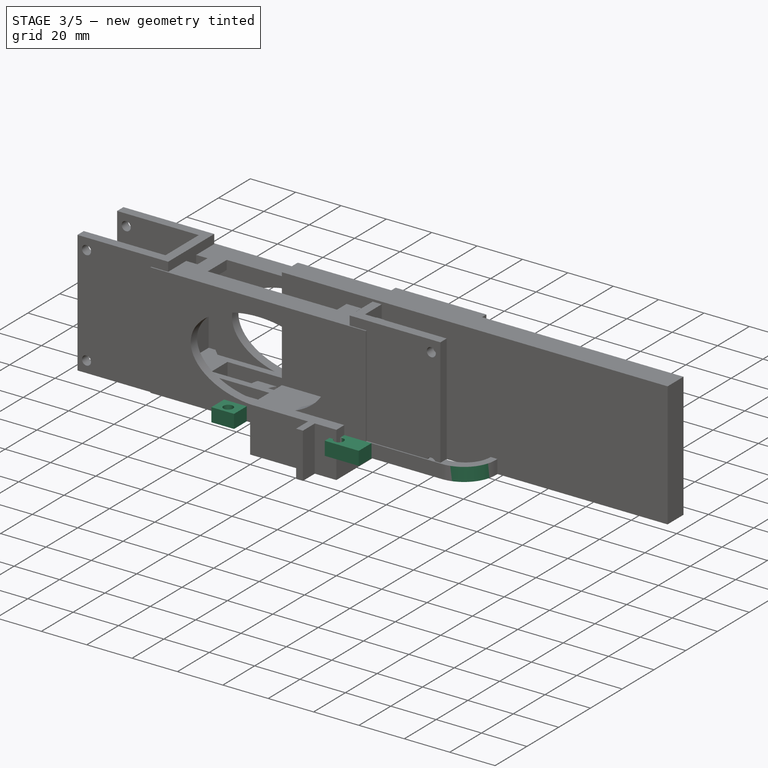
[diagram: stage 3 of 5 — iso view after this stage's code; geometry added in this stage tinted green]
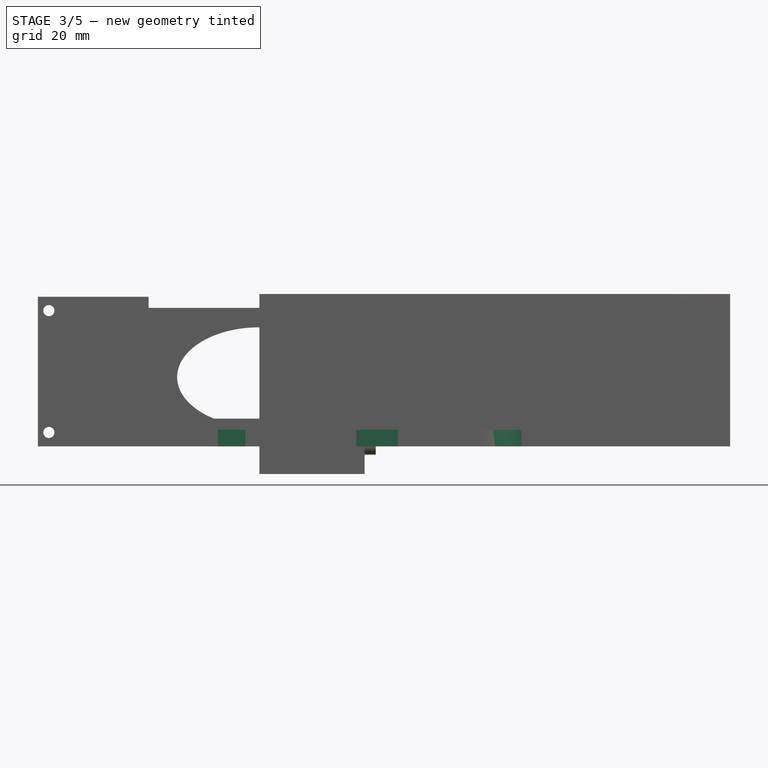
[diagram: stage 3 of 5 — front view after this stage's code; geometry added in this stage tinted green]
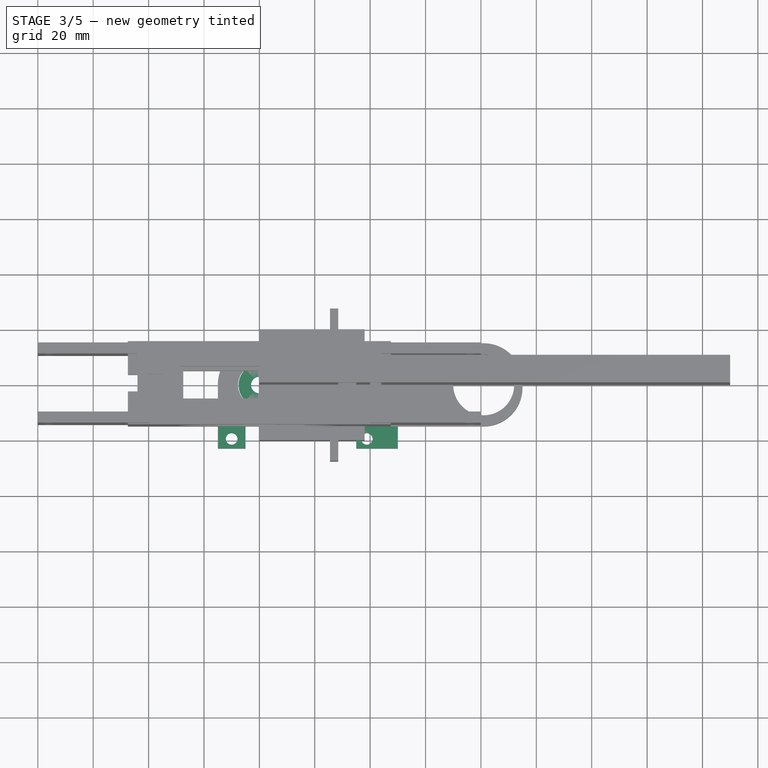
[diagram: stage 3 of 5 — top view after this stage's code; geometry added in this stage tinted green]
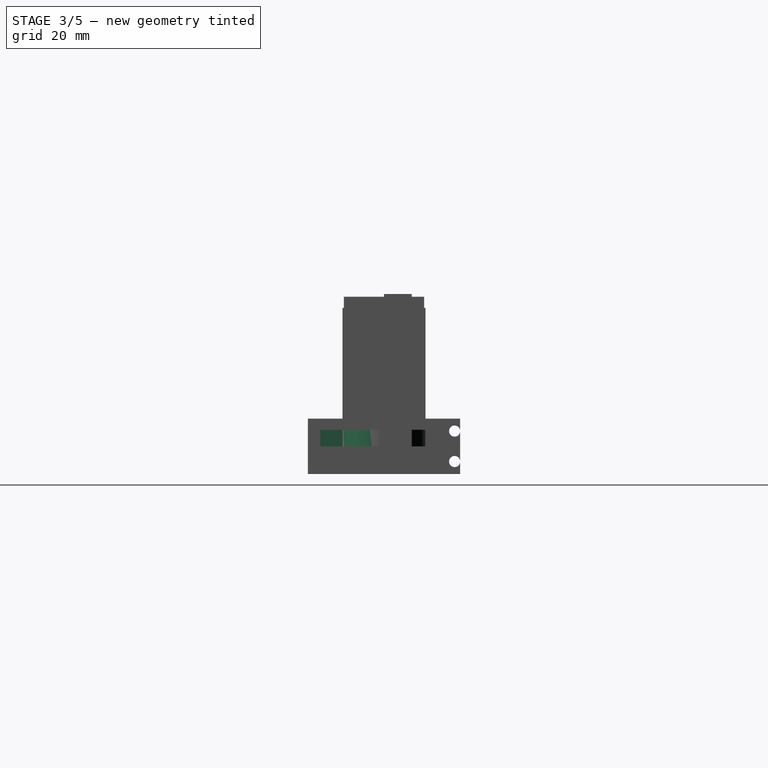
[diagram: stage 3 of 5 — right view after this stage's code; geometry added in this stage tinted green]
FEATURE [Sketcher::SketchObject] Sketch080
  ExternalGeometry = -> [Pad050]
  FullyConstrained = true
  MapMode = 5
  Placement = pos=(0,-15,0) rot=(1,0,0;1.5708rad)
  Support = -> [Pad050]
  sketch-geometry (4):
    g0: LineSegment StartX=-15 StartY=6 StartZ=0 EndX=50 EndY=6 EndZ=0
    g1: LineSegment StartX=50 StartY=6 StartZ=0 EndX=50 EndY=0 EndZ=0
    g2: LineSegment StartX=50 StartY=0 StartZ=0 EndX=-15 EndY=0 EndZ=0
    g3: LineSegment StartX=-15 StartY=0 StartZ=0 EndX=-15 EndY=6 EndZ=0
  constraints (11):
    c: Coincident(g0,g1)
    c: Coincident(g1,g2)
    c: Coincident(g2,g3)
    c: Coincident(g3,g0)
    c: Horizontal(g0)
    c: Horizontal(g2)
    c: Vertical(g1)
    c: Vertical(g3)
    c: Coincident(g0,g-4)
    c: PointOnObject(g1,g-5)
    c: DistanceX(g0,g0) = 65
FEATURE [Sketcher::SketchObject] Sketch081
  FullyConstrained = false
  MapMode = 5
  Placement = pos=(0,0,-3e-15) rot=(1,0,0;3.14159rad)
  sketch-geometry (2):
    g0: Circle CenterX=-10 CenterY=19.5 CenterZ=0 NormalX=0 NormalY=0 NormalZ=1 AngleXU=0 Radius=2.1
    g1: Circle CenterX=38.8 CenterY=19.5 CenterZ=0 NormalX=0 NormalY=0 NormalZ=1 AngleXU=0 Radius=2.1
  constraints (5):
    c: DistanceY(g0,g1) = 0
    c: DistanceX(g0,g1) = 48.8
    c: Diameter(g1) = 4.2
    c: Diameter(g0) = 4.2
    c: DistanceY(g-1,g0) = 19.5
FEATURE [PartDesign::Pad] Pad051
  BaseFeature = -> Pad050
  Direction = (0,-1,2e-16)
  Length = 8
  Length2 = 10
  Profile = -> Sketch080
  ReferenceAxis = -> Sketch080 [N_Axis]
  Type = 0
FEATURE [PartDesign::Pocket] Pocket024
  BaseFeature = -> Pad051
  Direction = (0,0,1)
  Length = 5
  Length2 = 5
  Midplane = true
  Profile = -> Sketch081
  ReferenceAxis = -> Sketch081 [N_Axis]
  Type = 1
FEATURE [Sketcher::SketchObject] Sketch082
  ExternalGeometry = -> [Sketch080,Pocket024]
  FullyConstrained = false
  MapMode = 5
  Placement = pos=(0,1.3e-15,6) rot=(0,0,1;0rad)
  Support = -> [Pocket024]
  sketch-geometry (4):
    g0: LineSegment StartX=-5 StartY=-34 StartZ=0 EndX=35 EndY=-34 EndZ=0
    g1: LineSegment StartX=35 StartY=-34 StartZ=0 EndX=35 EndY=-15 EndZ=0
    g2: LineSegment StartX=35 StartY=-15 StartZ=0 EndX=-5 EndY=-15 EndZ=0
    g3: LineSegment StartX=-5 StartY=-15 StartZ=0 EndX=-5 EndY=-34 EndZ=0
  constraints (11):
    c: Coincident(g0,g1)
    c: Coincident(g1,g2)
    c: Coincident(g2,g3)
    c: Coincident(g3,g0)
    c: Horizontal(g0)
    c: Horizontal(g2)
    c: Vertical(g1)
    c: Vertical(g3)
    c: DistanceX(g-5,g2) = 10
    c: PointOnObject(g2,g-3)
    c: DistanceX(g0,g0) = 40
FEATURE [PartDesign::Pocket] Pocket025
  BaseFeature = -> Pocket024
  Direction = (0,-2e-16,-1)
  Length = 3
  Length2 = 5
  Midplane = true
  Profile = -> Sketch082
  ReferenceAxis = -> Sketch082 [N_Axis]
  Type = 1
FEATURE [Sketcher::SketchObject] Sketch083
  ExternalGeometry = -> [Pocket025]
  FullyConstrained = true
  MapMode = 5
  Placement = pos=(0,0,6) rot=(0,0,1;0rad)
  Support = -> [Pocket025]
  sketch-geometry (1):
    g0: Circle CenterX=81 CenterY=0 CenterZ=0 NormalX=0 NormalY=0 NormalZ=1 AngleXU=0 Radius=11
  constraints (3):
    c: PointOnObject(g0,g-1)
    c: Diameter(g0) = 22
    c: DistanceX(g0,g-3) = 14
FEATURE [PartDesign::Pocket] Pocket026
  BaseFeature = -> Pocket025
  Direction = (0,0,-1)
  Length = 5
  Length2 = 5
  Midplane = true
  Profile = -> Sketch083
  ReferenceAxis = -> Sketch083 [N_Axis]
  Type = 1
FEATURE [PartDesign::Fillet] Fillet014
  Base = -> Pocket026 [Edge8,Edge2]
  BaseFeature = -> Pocket026
  Radius = 14
  SupportTransform = false
  UseAllEdges = false
FEATURE [PartDesign::Fillet] Fillet015
  Base = -> Fillet014 [Edge3]
  BaseFeature = -> Fillet014
  Radius = 15
  SupportTransform = false
  UseAllEdges = false
FEATURE [PartDesign::Fillet] Fillet016
  Base = -> Fillet015
  BaseFeature = -> Fillet015
  Radius = 3
  SupportTransform = false
  UseAllEdges = false
FEATURE [PartDesign::Pad] Pad052
  BaseFeature = -> Fillet016
  Direction = (0,0,-1)
  Length = 2
  Length2 = 10
  Profile = -> Sketch084
  ReferenceAxis = -> Sketch084 [N_Axis]
  Reversed = true
  Type = 0
FEATURE [PartDesign::CoordinateSystem] Local_CS038
  AttacherType = Attacher::AttachEngine3D
  MapMode = 11
  Placement = pos=(0,0,0) rot=(0,0,1;1.5708rad)
  Support = -> [Pad056]
FEATURE [PartDesign::Body] Body019  label="ballbearing"
  Group = -> [Sketch092,Pad056,Local_CS034,Local_CS038]
  Origin = -> Origin021
  Tip = -> Pad056
FEATURE [PartDesign::CoordinateSystem] Local_CS039
  AttacherType = Attacher::AttachEngine3D
  MapMode = 11
  Placement = pos=(-20.6144,0,0) rot=(0.707107,-0.707107,0;3.14159rad)
  Support = -> [Sketch047]
FEATURE [PartDesign::Body] Body  label="lower_leg"
  Group = -> [Sketch,Pad,Sketch047,Pad029,Sketch052,Pocket,Local_CS014,Local_CS015,Local_CS039]
  Origin = -> Origin001
  Tip = -> Pocket
FEATURE [PartDesign::CoordinateSystem] LCS_Origin002
  AttacherType = Attacher::AttachEngine3D
  MapMode = 2
  Support = -> [X_Axis026]
FEATURE [Sketcher::SketchObject] skeloton
  FullyConstrained = true
  expr: Constraints[4] = Variables.right_hip
  expr: Constraints[5] = Variables.right_knee
  sketch-geometry (2):
    g0: LineSegment StartX=0 StartY=0 StartZ=0 EndX=72.1715 EndY=-36.7732 EndZ=0
    g1: LineSegment StartX=72.1715 StartY=-36.7732 StartZ=0 EndX=4.54535 EndY=-97.6641 EndZ=0
  constraints (6):
    c: Coincident(g0,g-1)
    c: Coincident(g1,g0)
    c: Distance(g0) = 81
    c: Distance(g1) = 91
    c: Angle(g0,g-1) = 0.471239
    c: Angle(g0,g1) = 1.20428
FEATURE [PartDesign::CoordinateSystem] hip_lcs  label="upper_leg_lcs"
  AttacherType = Attacher::AttachEngine3D
  MapMode = 7
  Placement = pos=(0,0,0) rot=(-0.397594,0.648814,0.648814;3.89845rad)
  Support = -> [skeloton]
FEATURE [PartDesign::CoordinateSystem] lower_leg_lcs
  AttacherType = Attacher::AttachEngine3D
  MapMode = 7
  Placement = pos=(72.1715,-36.7732,0) rot=(0.300294,0.674471,0.674471;2.55814rad)
  Support = -> [skeloton]
FEATURE [App::Part] skeloton_all
  Group = -> [LCS_Origin002,skeloton,hip_lcs,lower_leg_lcs]
  Origin = -> Origin026
FEATURE [App::Link] skeloton_all001  label="skeloton_all_right_hind"
  AttachedBy = #LCS_Origin002
  AttachedTo = Parent Assembly#LCS_Origin
  AttachmentOffset = pos=(0,0,0) rot=(-0.57735,-0.57735,-0.57735;4.18879rad)
  LinkPlacement = pos=(0,0,0) rot=(-0.57735,-0.57735,-0.57735;4.18879rad)
  LinkedObject = -> skeloton_all
  Placement = pos=(0,0,0) rot=(-0.57735,-0.57735,-0.57735;4.18879rad)
  SolverId = Asm4EE
  expr: Placement = LCS_Origin.Placement * AttachmentOffset * LCS_Origin002.Placement ^ -1
FEATURE [App::Link] upper_leg_right001  label="upper_leg_right_hind"
  AttachedBy = #Local_CS032
  AttachedTo = skeloton_all001#hip_lcs
  AttachmentOffset = pos=(0,0,0) rot=(-0.57735,-0.57735,0.57735;4.18879rad)
  LinkPlacement = pos=(3,-1.15502,0.588511) rot=(-0.648814,-0.397594,0.648814;2.38473rad)
  LinkedObject = -> Body018
  Placement = pos=(3,-1.15502,0.588511) rot=(-0.648814,-0.397594,0.648814;2.38473rad)
  SolverId = Asm4EE
  expr: Placement = skeloton_all001.Placement * hip_lcs.Placement * AttachmentOffset * Local_CS032.Placement ^ -1
FEATURE [App::Link] lower_leg  label="lower_leg_right_hind"
  AttachedBy = #Local_CS039
  AttachedTo = skeloton_all001#lower_leg_lcs
  AttachmentOffset = pos=(0,4,0) rot=(1,0,0;1.5708rad)
  LinkPlacement = pos=(4,56.8521,-50.5669) rot=(-0.376764,0.846226,-0.376764;1.737rad)
  LinkedObject = -> Body
  Placement = pos=(4,56.8521,-50.5669) rot=(-0.376764,0.846226,-0.376764;1.737rad)
  SolverId = Asm4EE
  expr: Placement = skeloton_all001.Placement * lower_leg_lcs.Placement * AttachmentOffset * Local_CS039.Placement ^ -1
FEATURE [Sketcher::SketchObject] Sketch095
  FullyConstrained = true
  MapMode = 5
  Support = -> [XY_Plane027]
  sketch-geometry (6):
    g0: ArcOfCircle CenterX=0 CenterY=0 CenterZ=0 NormalX=0 NormalY=0 NormalZ=1 AngleXU=0 Radius=7.5 StartAngle=0.643501 EndAngle=5.63968
    g1: LineSegment StartX=6 StartY=4.5 StartZ=0 EndX=14 EndY=4.5 EndZ=0
    g2: LineSegment StartX=14 StartY=-4.5 StartZ=0 EndX=6 EndY=-4.5 EndZ=0
    g3: Circle CenterX=0 CenterY=0 CenterZ=0 NormalX=0 NormalY=0 NormalZ=1 AngleXU=0 Radius=3
    g4: ArcOfCircle CenterX=14 CenterY=0 CenterZ=0 NormalX=0 NormalY=0 NormalZ=1 AngleXU=0 Radius=4.5 StartAngle=4.71239 EndAngle=7.85398
    g5: Circle CenterX=11.5 CenterY=0 CenterZ=0 NormalX=0 NormalY=0 NormalZ=1 AngleXU=0 Radius=2
  constraints (17):
    c: Coincident(g0,g-1)
    c: Diameter(g0) = 15
    c: Horizontal(g1)
    c: Horizontal(g2)
    c: Coincident(g0,g2)
    c: Coincident(g0,g1)
    c: Coincident(g3,g0)
    c: Diameter(g3) = 6
    c: PointOnObject(g4,g-1)
    c: Tangent(g4,g1) = 1.5708
    c: Coincident(g4,g2)
    c: Diameter(g4) = 9
    c: PointOnObject(g5,g-1)
    c: Diameter(g5) = 4
    c: DistanceX(g0,g5) = 11.5
    c: DistanceX(g1,g1) = 8
    c: DistanceX(g2,g2) = 8
FEATURE [PartDesign::Pad] Pad059
  Direction = (0,0,1)
  Length = 4
  Length2 = 10
  Profile = -> Sketch095
  ReferenceAxis = -> Sketch095 [N_Axis]
  Type = 0
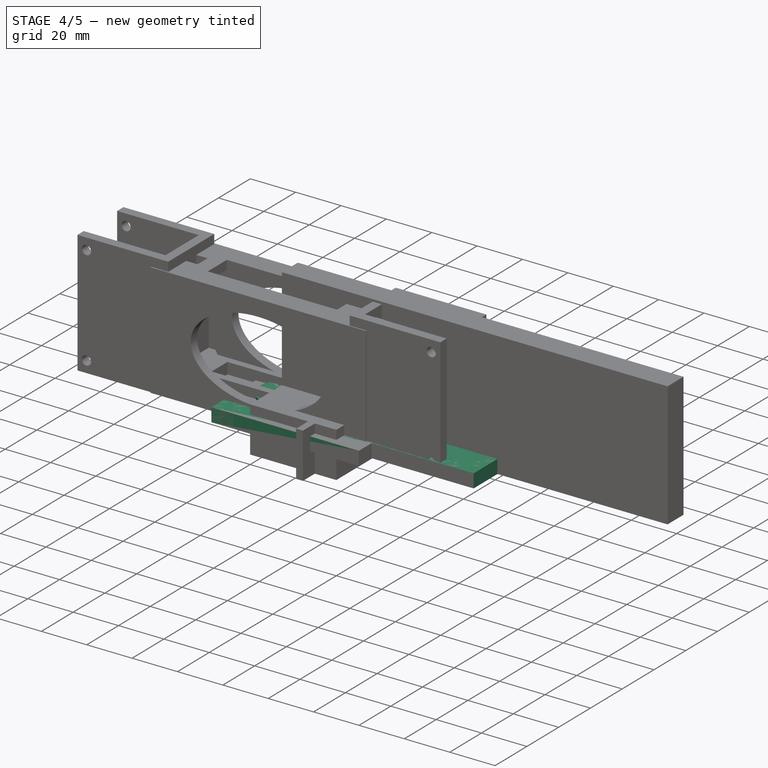
[diagram: stage 4 of 5 — iso view after this stage's code; geometry added in this stage tinted green]
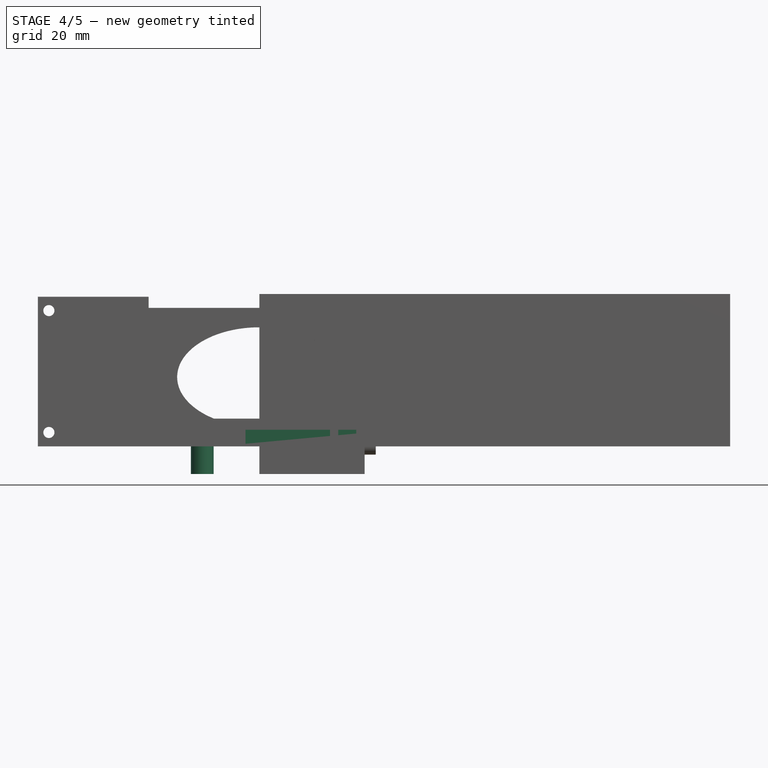
[diagram: stage 4 of 5 — front view after this stage's code; geometry added in this stage tinted green]
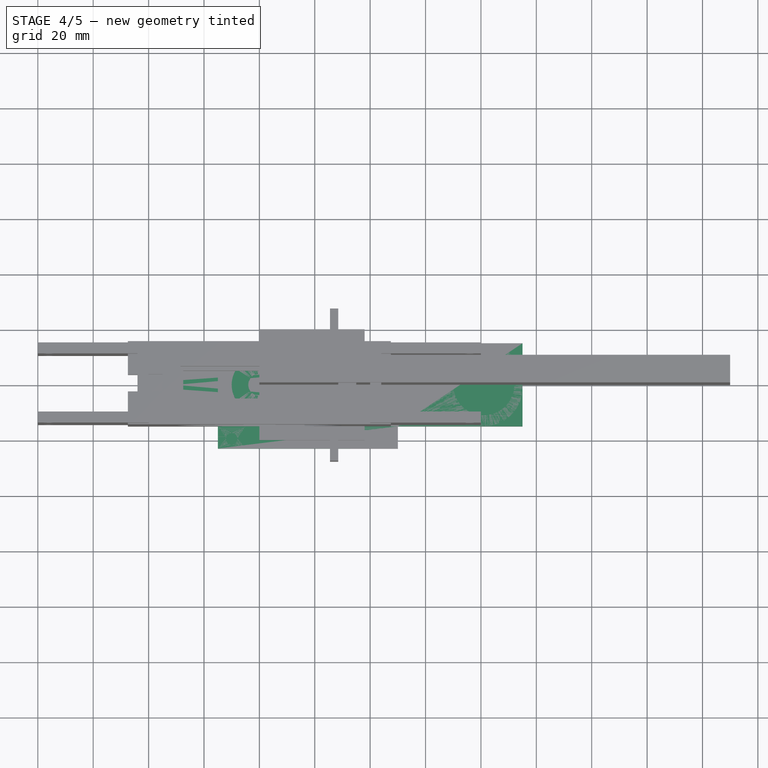
[diagram: stage 4 of 5 — top view after this stage's code; geometry added in this stage tinted green]
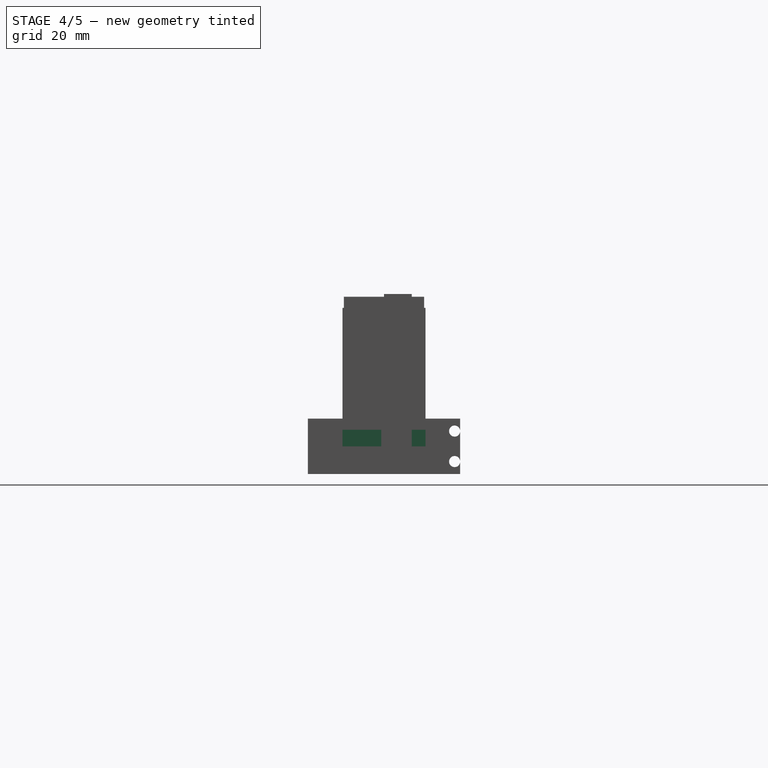
[diagram: stage 4 of 5 — right view after this stage's code; geometry added in this stage tinted green]
FEATURE [PartDesign::CoordinateSystem] LCS_Origin
  AttacherType = Attacher::AttachEngine3D
  MapMode = 2
  Support = -> [X_Axis]
FEATURE [App::DocumentObjectGroup] Constraints
FEATURE [App::FeaturePython] Variables  # WARN: FeaturePython — macro-defined, semantics opaque (R4)
  Type = App::PropertyContainer
  leg_connector = 268
  right_hip = 27
  right_knee = 69
  expr: leg_connector = 337 - right_knee
  expr: right_knee = right_hip * 2 + 15
FEATURE [App::DocumentObjectGroup] Configurations
FEATURE [Sketcher::SketchObject] Sketch
  FullyConstrained = true
  MapMode = 5
  Support = -> [XY_Plane001]
  sketch-geometry (4):
    g0: LineSegment StartX=53.3856 StartY=-7.50386 StartZ=0 EndX=-36.6144 EndY=-7.50386 EndZ=0
    g1: LineSegment StartX=-36.6144 StartY=-7.50386 StartZ=0 EndX=-36.6144 EndY=7.49614 EndZ=0
    g2: LineSegment StartX=-36.6144 StartY=7.49614 StartZ=0 EndX=53.3856 EndY=7.50386 EndZ=0
    g3: ArcOfCircle CenterX=59.9956 CenterY=0 CenterZ=0 NormalX=0 NormalY=0 NormalZ=1 AngleXU=0 Radius=10 StartAngle=3.99024 EndAngle=8.57613
  constraints (13):
    c: Coincident(g0,g1)
    c: Coincident(g1,g2)
    c: Horizontal(g0)
    c: Vertical(g1)
    c: Diameter(g3) = 20
    c: PointOnObject(g3,g-1)
    c: Coincident(g2,g3)
    c: Coincident(g0,g3)
    c: DistanceX(g0,g0) = 90
    c: DistanceY(g1,g1) = 15
    c: DistanceX(g2,g3) = 6.61
    c: DistanceX(g2) = 53.3856
    c: DistanceX(g2,g2) = 90
FEATURE [PartDesign::Pad] Pad
  Direction = (0,0,1)
  Length = 5
  Length2 = 10
  Profile = -> Sketch
  ReferenceAxis = -> Sketch [N_Axis]
  Type = 0
FEATURE [Sketcher::SketchObject] Sketch047
  ExternalGeometry = -> [Pad]
  FullyConstrained = true
  MapMode = 5
  Placement = pos=(0,0,0) rot=(1,0,0;3.14159rad)
  Support = -> [Pad]
  sketch-geometry (1):
    g0: Circle CenterX=-20.6144 CenterY=0 CenterZ=0 NormalX=0 NormalY=0 NormalZ=1 AngleXU=0 Radius=4.1
  constraints (3):
    c: PointOnObject(g0,g-1)
    c: DistanceX(g-3,g0) = 16
    c: Diameter(g0) = 8.2
FEATURE [PartDesign::Pad] Pad029
  BaseFeature = -> Pad
  Direction = (0,0,-1)
  Length = 10
  Length2 = 10
  Profile = -> Sketch047
  ReferenceAxis = -> Sketch047 [N_Axis]
  Type = 0
FEATURE [Sketcher::SketchObject] Sketch052
  ExternalGeometry = -> [Sketch,Pad029]
  FullyConstrained = true
  MapMode = 5
  Placement = pos=(0,0,0) rot=(1,0,0;3.14159rad)
  Support = -> [Pad029]
  sketch-geometry (1):
    g0: Circle CenterX=-32.1044 CenterY=0 CenterZ=0 NormalX=0 NormalY=0 NormalZ=1 AngleXU=0 Radius=2
  constraints (3):
    c: PointOnObject(g0,g-1)
    c: Diameter(g0) = 4
    c: Distance(g0,g-3) = 4.51
FEATURE [PartDesign::Pocket] Pocket
  BaseFeature = -> Pad029
  Direction = (0,0,1)
  Length = 5
  Length2 = 5
  Profile = -> Sketch052
  ReferenceAxis = -> Sketch052 [N_Axis]
  Type = 0
FEATURE [PartDesign::CoordinateSystem] Local_CS014
  AttacherType = Attacher::AttachEngine3D
  MapMode = 45
  Placement = pos=(-32.1044,0,2.5) rot=(0,0,1;0rad)
  Support = -> [Pocket]
FEATURE [PartDesign::CoordinateSystem] Local_CS015
  AttacherType = Attacher::AttachEngine3D
  MapMode = 45
  Placement = pos=(-20.6144,1e-16,-10) rot=(0,0,1;0rad)
  Support = -> [Pocket]
FEATURE [Sketcher::SketchObject] Sketch049
  FullyConstrained = true
  MapMode = 5
  Support = -> [XY_Plane014]
  sketch-geometry (4):
    g0: LineSegment StartX=-40 StartY=5 StartZ=0 EndX=40 EndY=5 EndZ=0
    g1: LineSegment StartX=40 StartY=5 StartZ=0 EndX=40 EndY=-5 EndZ=0
    g2: LineSegment StartX=40 StartY=-5 StartZ=0 EndX=-40 EndY=-5 EndZ=0
    g3: LineSegment StartX=-40 StartY=-5 StartZ=0 EndX=-40 EndY=5 EndZ=0
  constraints (10):
    c: Coincident(g0,g1)
    c: Coincident(g1,g2)
    c: Coincident(g2,g3)
    c: Coincident(g3,g0)
    c: Horizontal(g2)
    c: Vertical(g3)
    c: Symmetric(g0,g1,g-1)
    c: Symmetric(g0,g0,g-2)
    c: DistanceX(g0,g0) = 80
    c: DistanceY(g1,g1) = 10
FEATURE [PartDesign::Pad] Pad030
  Direction = (0,0,1)
  Length = 2
  Length2 = 10
  Profile = -> Sketch049
  ReferenceAxis = -> Sketch049 [N_Axis]
  Type = 0
FEATURE [Sketcher::SketchObject] Sketch050
  ExternalGeometry = -> [Pad030]
  FullyConstrained = true
  MapMode = 5
  Placement = pos=(0,0,2) rot=(0,0,1;0rad)
  Support = -> [Pad030]
  sketch-geometry (2):
    g0: Circle CenterX=-32 CenterY=0 CenterZ=0 NormalX=0 NormalY=0 NormalZ=1 AngleXU=0 Radius=2
    g1: Circle CenterX=32 CenterY=0 CenterZ=0 NormalX=0 NormalY=0 NormalZ=1 AngleXU=0 Radius=2
  constraints (5):
    c: PointOnObject(g0,g-1)
    c: Diameter(g1) = 4
    c: Diameter(g0) = 4
    c: Symmetric(g1,g0,g-2)
    c: DistanceX(g0,g1) = 64
FEATURE [PartDesign::Pocket] Pocket023
  BaseFeature = -> Pad030
  Direction = (0,0,-1)
  Length = 5
  Length2 = 5
  Profile = -> Sketch050
  ReferenceAxis = -> Sketch050 [N_Axis]
  Type = 0
FEATURE [PartDesign::Fillet] Fillet
  Base = -> Pocket023 [Edge8,Edge2,Edge5,Edge1]
  BaseFeature = -> Pocket023
  Radius = 4
  SupportTransform = false
  UseAllEdges = false
FEATURE [PartDesign::CoordinateSystem] Local_CS026
  AttacherType = Attacher::AttachEngine3D
  MapMode = 45
  Placement = pos=(38.8,-19.5,3) rot=(0,0,1;0rad)
  Support = -> [Pad052]
FEATURE [PartDesign::CoordinateSystem] Local_CS027
  AttacherType = Attacher::AttachEngine3D
  MapMode = 45
  Placement = pos=(-10,-19.5,3) rot=(0,0,1;0rad)
  Support = -> [Pad052]
FEATURE [PartDesign::CoordinateSystem] Local_CS028
  AttacherType = Attacher::AttachEngine3D
  MapMode = 45
  Placement = pos=(81,-8e-16,3) rot=(0,0,1;0rad)
  Support = -> [Pad052]
FEATURE [PartDesign::CoordinateSystem] Local_CS029
  AttacherType = Attacher::AttachEngine3D
  MapMode = 45
  Placement = pos=(1.29631,4e-16,3) rot=(0,0,1;0rad)
  Support = -> [Pad052]
FEATURE [PartDesign::Body] Body017  label="upper_leg_left"
  Group = -> [Sketch079,Pad050,Sketch080,Pad051,Sketch081,Pocket024,Sketch082,Pocket025,Sketch083,Pocket026,Fillet014,Fillet015,Fillet016,Sketch084,Pad052,Local_CS026,Local_CS027,Local_CS028,Local_CS029]
  Origin = -> Origin019
  Tip = -> Pad052
FEATURE [Sketcher::SketchObject] Sketch085
  FullyConstrained = false
  MapMode = 5
  Support = -> [XY_Plane020]
  sketch-geometry (12):
    g0: ArcOfCircle CenterX=0 CenterY=0 CenterZ=0 NormalX=0 NormalY=0 NormalZ=1 AngleXU=0 Radius=7.7 StartAngle=1.5708 EndAngle=4.71239
    g1: LineSegment StartX=28.6097 StartY=-3.8 StartZ=0 EndX=13.6097 EndY=-3.8 EndZ=0
    g2: LineSegment StartX=13.6097 StartY=3.8 StartZ=0 EndX=28.6097 EndY=3.8 EndZ=0
    g3: LineSegment StartX=28.6097 StartY=3.8 StartZ=0 EndX=28.6097 EndY=-3.8 EndZ=0
    g4: LineSegment StartX=-1.2e-15 StartY=7.7 StartZ=0 EndX=13.6097 EndY=7.7 EndZ=0
    g5: LineSegment StartX=13.6097 StartY=7.7 StartZ=0 EndX=13.6097 EndY=3.8 EndZ=0
    g6: LineSegment StartX=-1.4e-15 StartY=-7.7 StartZ=0 EndX=13.6097 EndY=-7.7 EndZ=0
    g7: LineSegment StartX=13.6097 StartY=-7.7 StartZ=0 EndX=13.6097 EndY=-3.8 EndZ=0
    g8: LineSegment StartX=-15 StartY=15 StartZ=0 EndX=95 EndY=15 EndZ=0
    g9: LineSegment StartX=95 StartY=15 StartZ=0 EndX=95 EndY=-15 EndZ=0
    g10: LineSegment StartX=95 StartY=-15 StartZ=0 EndX=-15 EndY=-15 EndZ=0
    g11: LineSegment StartX=-15 StartY=-15 StartZ=0 EndX=-15 EndY=15 EndZ=0
  constraints (31):
    c: Coincident(g0,g-1)
    c: Diameter(g0) = 15.4
    c: Coincident(g2,g3)
    c: Coincident(g3,g1)
    c: Horizontal(g1)
    c: Horizontal(g2)
    c: Symmetric(g1,g2,g-1)
    c: DistanceY(g3,g3) = 7.6
    c: Horizontal(g4)
    c: Coincident(g4,g5)
    c: Vertical(g5)
    c: DistanceX(g5,g2) = 15
    c: Horizontal(g6)
    c: Coincident(g6,g7)
    c: Vertical(g7)
    c: DistanceX(g7,g1) = 15
    c: Tangent(g0,g4) = 1.5708
    c: Coincident(g2,g5)
    c: Coincident(g1,g7)
    c: Tangent(g0,g6) = -1.5708
    c: Coincident(g8,g9)
    c: Coincident(g9,g10)
    c: Coincident(g10,g11)
    c: Coincident(g11,g8)
    c: Horizontal(g8)
    c: Horizontal(g10)
    c: Vertical(g9)
    c: Symmetric(g8,g10,g-1)
    c: DistanceY(g11,g11) = 30
    c: DistanceX(g10,g-1) = 15
    c: DistanceX(g-1,g9) = 95
FEATURE [PartDesign::Pad] Pad053
  Direction = (0,0,1)
  Length = 6
  Length2 = 10
  Profile = -> Sketch085
  ReferenceAxis = -> Sketch085 [N_Axis]
  Type = 0
FEATURE [Sketcher::SketchObject] Sketch086
  ExternalGeometry = -> [Pad053]
  FullyConstrained = true
  MapMode = 5
  Placement = pos=(0,-15,0) rot=(1,0,0;1.5708rad)
  Support = -> [Pad053]
  sketch-geometry (4):
    g0: LineSegment StartX=-15 StartY=6 StartZ=0 EndX=50 EndY=6 EndZ=0
    g1: LineSegment StartX=50 StartY=6 StartZ=0 EndX=50 EndY=0 EndZ=0
    g2: LineSegment StartX=50 StartY=0 StartZ=0 EndX=-15 EndY=0 EndZ=0
    g3: LineSegment StartX=-15 StartY=0 StartZ=0 EndX=-15 EndY=6 EndZ=0
  constraints (11):
    c: Coincident(g0,g1)
    c: Coincident(g1,g2)
    c: Coincident(g2,g3)
    c: Coincident(g3,g0)
    c: Horizontal(g0)
    c: Horizontal(g2)
    c: Vertical(g1)
    c: Vertical(g3)
    c: Coincident(g0,g-4)
    c: PointOnObject(g1,g-5)
    c: DistanceX(g0,g0) = 65
FEATURE [Sketcher::SketchObject] Sketch087
  FullyConstrained = false
  MapMode = 5
  Placement = pos=(0,0,-3e-15) rot=(1,0,0;3.14159rad)
  sketch-geometry (2):
    g0: Circle CenterX=-10 CenterY=19.5 CenterZ=0 NormalX=0 NormalY=0 NormalZ=1 AngleXU=0 Radius=2.1
    g1: Circle CenterX=38.8 CenterY=19.5 CenterZ=0 NormalX=0 NormalY=0 NormalZ=1 AngleXU=0 Radius=2.1
  constraints (5):
    c: DistanceY(g0,g1) = 0
    c: DistanceX(g0,g1) = 48.8
    c: Diameter(g1) = 4.2
    c: Diameter(g0) = 4.2
    c: DistanceY(g-1,g0) = 19.5
FEATURE [PartDesign::Pad] Pad054
  BaseFeature = -> Pad053
  Direction = (0,-1,2e-16)
  Length = 8
  Length2 = 10
  Profile = -> Sketch086
  ReferenceAxis = -> Sketch086 [N_Axis]
  Type = 0
FEATURE [PartDesign::CoordinateSystem] Local_CS030
  AttacherType = Attacher::AttachEngine3D
  MapMode = 45
  Placement = pos=(38.8,-19.5,3) rot=(0,0,1;0rad)
  Support = -> [Pad055]
FEATURE [PartDesign::CoordinateSystem] Local_CS031
  AttacherType = Attacher::AttachEngine3D
  MapMode = 45
  Placement = pos=(-10,-19.5,3) rot=(0,0,1;0rad)
  Support = -> [Pad055]
FEATURE [PartDesign::CoordinateSystem] Local_CS032
  AttacherType = Attacher::AttachEngine3D
  MapMode = 45
  Placement = pos=(1.29631,4e-16,3) rot=(0,0,1;0rad)
  Support = -> [Pad055]
FEATURE [PartDesign::CoordinateSystem] Local_CS033
  AttacherType = Attacher::AttachEngine3D
  MapMode = 45
  Placement = pos=(81,-8e-16,3) rot=(0,0,1;0rad)
  Support = -> [Pad055]
FEATURE [PartDesign::Body] Body018  label="upper_leg_right"
  Group = -> [Sketch085,Pad053,Sketch086,Pad054,Sketch087,Pocket027,Sketch088,Pocket028,Sketch089,Pocket029,Fillet017,Fillet018,Fillet019,Sketch091,Pad055,Local_CS030,Local_CS031,Local_CS032,Local_CS033]
  Origin = -> Origin020
  Tip = -> Pad055
FEATURE [Sketcher::SketchObject] Sketch092
  FullyConstrained = true
  MapMode = 5
  Support = -> [XY_Plane021]
  sketch-geometry (2):
    g0: Circle CenterX=0 CenterY=0 CenterZ=0 NormalX=0 NormalY=0 NormalZ=1 AngleXU=0 Radius=4
    g1: Circle CenterX=0 CenterY=0 CenterZ=0 NormalX=0 NormalY=0 NormalZ=1 AngleXU=0 Radius=10
  constraints (4):
    c: Coincident(g0,g-1)
    c: Coincident(g1,g0)
    c: Diameter(g0) = 8
    c: Diameter(g1) = 20
FEATURE [PartDesign::Pad] Pad056
  Direction = (0,0,1)
  Length = 7
  Length2 = 10
  Profile = -> Sketch092
  ReferenceAxis = -> Sketch092 [N_Axis]
  Type = 0
FEATURE [PartDesign::CoordinateSystem] Local_CS034
  AttacherType = Attacher::AttachEngine3D
  MapMode = 45
  Placement = pos=(0,-1e-16,3.5) rot=(0,0,1;0rad)
  Support = -> [Pad056]
FEATURE [Sketcher::SketchObject] Sketch093
  FullyConstrained = true
  MapMode = 5
  Support = -> [XY_Plane022]
  sketch-geometry (7):
    g0: ArcOfCircle CenterX=0 CenterY=0 CenterZ=0 NormalX=0 NormalY=0 NormalZ=1 AngleXU=0 Radius=7.5 StartAngle=0.523599 EndAngle=5.75959
    g1: LineSegment StartX=6.49519 StartY=3.75 StartZ=0 EndX=23.7452 EndY=3.75 EndZ=0
    g2: LineSegment StartX=23.7452 StartY=-3.75 StartZ=0 EndX=6.49519 EndY=-3.75 EndZ=0
    g3: Circle CenterX=0 CenterY=0 CenterZ=0 NormalX=0 NormalY=0 NormalZ=1 AngleXU=0 Radius=3
    g4: ArcOfCircle CenterX=23.7452 CenterY=0 CenterZ=0 NormalX=0 NormalY=0 NormalZ=1 AngleXU=0 Radius=3.75 StartAngle=4.71239 EndAngle=7.85398
    g5: Circle CenterX=23 CenterY=0 CenterZ=0 NormalX=0 NormalY=0 NormalZ=1 AngleXU=0 Radius=1.5
    g6: Circle CenterX=19 CenterY=0 CenterZ=0 NormalX=0 NormalY=0 NormalZ=1 AngleXU=0 Radius=1.5
  constraints (20):
    c: Coincident(g0,g-1)
    c: Diameter(g0) = 15
    c: Horizontal(g1)
    c: Horizontal(g2)
    c: Coincident(g0,g2)
    c: Coincident(g0,g1)
    c: Coincident(g3,g0)
    c: Diameter(g3) = 6
    c: PointOnObject(g4,g-1)
    c: Tangent(g4,g1) = 1.5708
    c: Coincident(g4,g2)
    c: DistanceX(g1,g1) = 17.25
    c: Diameter(g4) = 7.5
    c: DistanceX(g2,g2) = 17.25
    c: PointOnObject(g5,g-1)
    c: PointOnObject(g6,g-1)
    c: Diameter(g5) = 3
    c: Diameter(g6) = 3
    c: DistanceX(g6,g5) = 4
    c: DistanceX(g0,g6) = 19
FEATURE [PartDesign::Pad] Pad057
  Direction = (0,0,1)
  Length = 4.5
  Length2 = 10
  Profile = -> Sketch093
  ReferenceAxis = -> Sketch093 [N_Axis]
  Type = 0
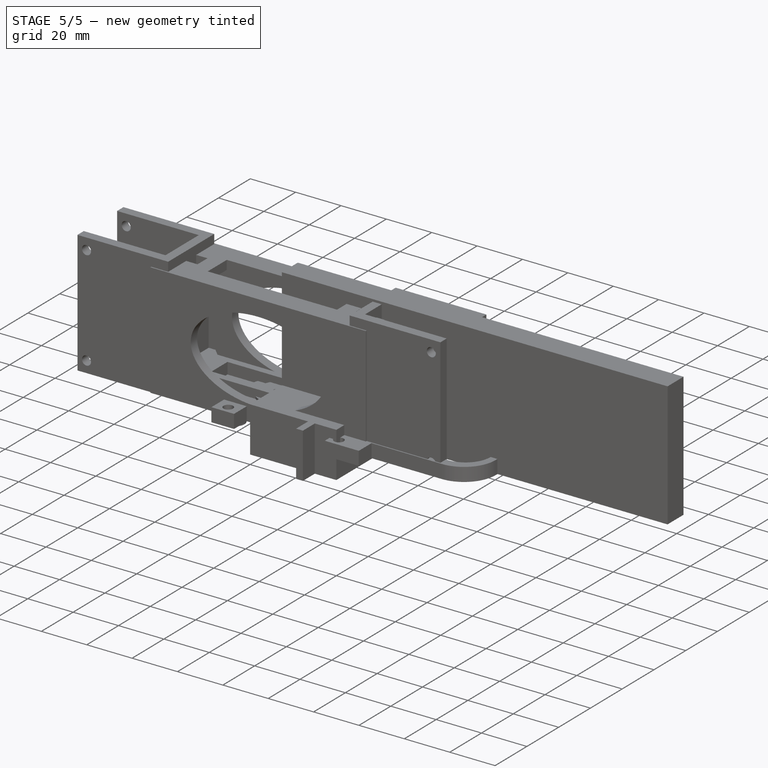
[diagram: stage 5 of 5 — iso view after this stage's code; geometry added in this stage tinted green]
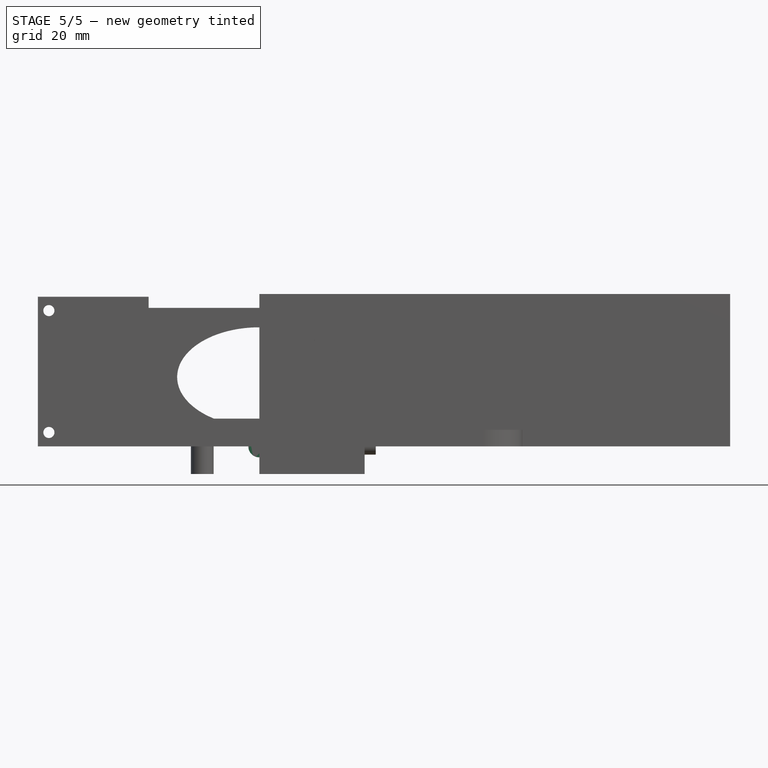
[diagram: stage 5 of 5 — front view after this stage's code; geometry added in this stage tinted green]
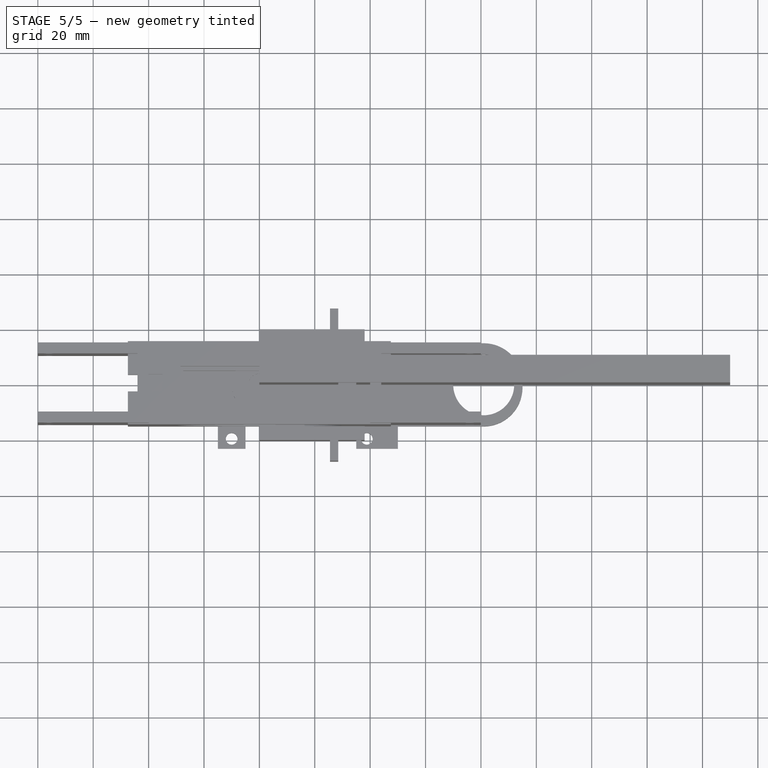
[diagram: stage 5 of 5 — top view after this stage's code; geometry added in this stage tinted green]
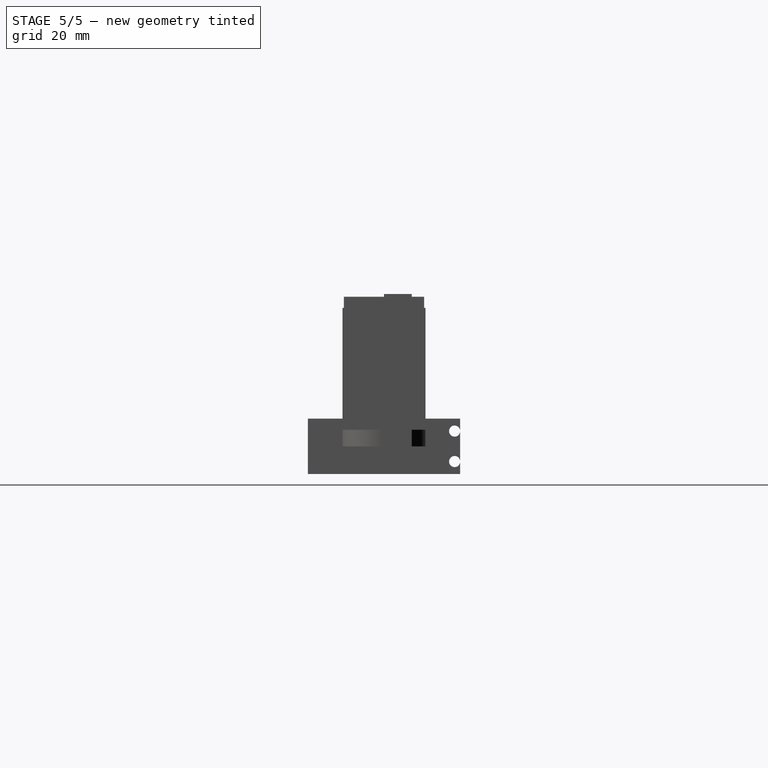
[diagram: stage 5 of 5 — right view after this stage's code; geometry added in this stage tinted green]
FEATURE [PartDesign::CoordinateSystem] Local_CS009
  AttacherType = Attacher::AttachEngine3D
  MapMode = 45
  Placement = pos=(27,25.5,-5.5) rot=(0.57735,0.57735,0.57735;2.0944rad)
  Support = -> [Pad036]
FEATURE [PartDesign::CoordinateSystem] Local_CS010
  AttacherType = Attacher::AttachEngine3D
  MapMode = 45
  Placement = pos=(27,25.5,5.5) rot=(0.57735,0.57735,0.57735;2.0944rad)
  Support = -> [Pad036]
FEATURE [PartDesign::CoordinateSystem] Local_CS011  label="lcs_lever_adapter"
  AttacherType = Attacher::AttachEngine3D
  MapMode = 45
  Placement = pos=(42,10,1.82e-14) rot=(0.57735,0.57735,0.57735;2.0944rad)
  Support = -> [Pad036]
FEATURE [PartDesign::CoordinateSystem] Local_CS020
  AttacherType = Attacher::AttachEngine3D
  MapMode = 45
  Placement = pos=(0,-1e-16,7e-16) rot=(0.707107,0,0.707107;3.14159rad)
  Support = -> [Pad036]
FEATURE [Sketcher::SketchObject] Sketch077
  FullyConstrained = true
  MapMode = 5
  Placement = pos=(0,0,0) rot=(1,0,0;1.5708rad)
  Support = -> [XZ_Plane018]
  sketch-geometry (1):
    g0: Circle CenterX=0 CenterY=0 CenterZ=0 NormalX=0 NormalY=0 NormalZ=1 AngleXU=0 Radius=2
  constraints (2):
    c: Coincident(g0,g-1)
    c: Diameter(g0) = 4
FEATURE [PartDesign::Pad] Pad048
  Direction = (0,-1,2e-16)
  Length = 6
  Length2 = 10
  Placement = pos=(0,0,0) rot=(1,0,0;1.5708rad)
  Profile = -> Sketch077
  ReferenceAxis = -> Sketch077 [N_Axis]
  Type = 0
FEATURE [Sketcher::SketchObject] Sketch078
  FullyConstrained = true
  MapMode = 5
  Placement = pos=(0,-6,1.3e-15) rot=(1,0,0;1.5708rad)
  Support = -> [Pad048]
  sketch-geometry (1):
    g0: Circle CenterX=0 CenterY=0 CenterZ=0 NormalX=0 NormalY=0 NormalZ=1 AngleXU=0 Radius=4
  constraints (2):
    c: Coincident(g0,g-1)
    c: Diameter(g0) = 8
FEATURE [PartDesign::Pad] Pad049
  BaseFeature = -> Pad048
  Direction = (0,-1,2e-16)
  Length = 2
  Length2 = 10
  Placement = pos=(0,0,0) rot=(1,0,0;1.5708rad)
  Profile = -> Sketch078
  ReferenceAxis = -> Sketch078 [N_Axis]
  Type = 0
FEATURE [PartDesign::Pocket] Pocket027
  BaseFeature = -> Pad054
  Direction = (0,0,1)
  Length = 5
  Length2 = 5
  Midplane = true
  Profile = -> Sketch087
  ReferenceAxis = -> Sketch087 [N_Axis]
  Type = 1
FEATURE [Sketcher::SketchObject] Sketch088
  ExternalGeometry = -> [Sketch086,Pocket027]
  FullyConstrained = false
  MapMode = 5
  Placement = pos=(0,1.3e-15,6) rot=(0,0,1;0rad)
  Support = -> [Pocket027]
  sketch-geometry (4):
    g0: LineSegment StartX=-5 StartY=-34 StartZ=0 EndX=35 EndY=-34 EndZ=0
    g1: LineSegment StartX=35 StartY=-34 StartZ=0 EndX=35 EndY=-15 EndZ=0
    g2: LineSegment StartX=35 StartY=-15 StartZ=0 EndX=-5 EndY=-15 EndZ=0
    g3: LineSegment StartX=-5 StartY=-15 StartZ=0 EndX=-5 EndY=-34 EndZ=0
  constraints (11):
    c: Coincident(g0,g1)
    c: Coincident(g1,g2)
    c: Coincident(g2,g3)
    c: Coincident(g3,g0)
    c: Horizontal(g0)
    c: Horizontal(g2)
    c: Vertical(g1)
    c: Vertical(g3)
    c: DistanceX(g-5,g2) = 10
    c: PointOnObject(g2,g-3)
    c: DistanceX(g0,g0) = 40
FEATURE [PartDesign::Pocket] Pocket028
  BaseFeature = -> Pocket027
  Direction = (0,-2e-16,-1)
  Length = 3
  Length2 = 5
  Midplane = true
  Profile = -> Sketch088
  ReferenceAxis = -> Sketch088 [N_Axis]
  Type = 1
FEATURE [Sketcher::SketchObject] Sketch089
  ExternalGeometry = -> [Pocket028]
  FullyConstrained = true
  MapMode = 5
  Placement = pos=(0,0,6) rot=(0,0,1;0rad)
  Support = -> [Pocket028]
  sketch-geometry (1):
    g0: Circle CenterX=81 CenterY=0 CenterZ=0 NormalX=0 NormalY=0 NormalZ=1 AngleXU=0 Radius=11
  constraints (3):
    c: PointOnObject(g0,g-1)
    c: Diameter(g0) = 22
    c: DistanceX(g0,g-3) = 14
FEATURE [PartDesign::Pocket] Pocket029
  BaseFeature = -> Pocket028
  Direction = (0,0,-1)
  Length = 5
  Length2 = 5
  Midplane = true
  Profile = -> Sketch089
  ReferenceAxis = -> Sketch089 [N_Axis]
  Type = 1
FEATURE [PartDesign::Fillet] Fillet017
  Base = -> Pocket029 [Edge8,Edge2]
  BaseFeature = -> Pocket029
  Radius = 14
  SupportTransform = false
  UseAllEdges = false
FEATURE [PartDesign::Fillet] Fillet018
  Base = -> Fillet017 [Edge3]
  BaseFeature = -> Fillet017
  Radius = 15
  SupportTransform = false
  UseAllEdges = false
FEATURE [PartDesign::Fillet] Fillet019
  Base = -> Fillet018
  BaseFeature = -> Fillet018
  Radius = 3
  SupportTransform = false
  UseAllEdges = false
FEATURE [Sketcher::SketchObject] Sketch091
  ExternalGeometry = -> [Fillet019]
  FullyConstrained = true
  MapMode = 5
  Placement = pos=(0,0,6) rot=(0,0,1;0rad)
  sketch-geometry (4):
    g0: LineSegment StartX=13.6097 StartY=3.8 StartZ=0 EndX=28.6097 EndY=3.8 EndZ=0
    g1: LineSegment StartX=28.6097 StartY=3.8 StartZ=0 EndX=28.6097 EndY=-3.8 EndZ=0
    g2: LineSegment StartX=28.6097 StartY=-3.8 StartZ=0 EndX=13.6097 EndY=-3.8 EndZ=0
    g3: LineSegment StartX=13.6097 StartY=-3.8 StartZ=0 EndX=13.6097 EndY=3.8 EndZ=0
  constraints (10):
    c: Coincident(g0,g1)
    c: Coincident(g1,g2)
    c: Coincident(g2,g3)
    c: Coincident(g3,g0)
    c: Horizontal(g0)
    c: Horizontal(g2)
    c: Vertical(g1)
    c: Vertical(g3)
    c: Coincident(g0,g-3)
    c: Coincident(g1,g-4)
FEATURE [PartDesign::Pad] Pad055
  BaseFeature = -> Fillet019
  Direction = (0,0,1)
  Length = 2
  Length2 = 10
  Profile = -> Sketch091
  ReferenceAxis = -> Sketch091 [N_Axis]
  Reversed = true
  Type = 0
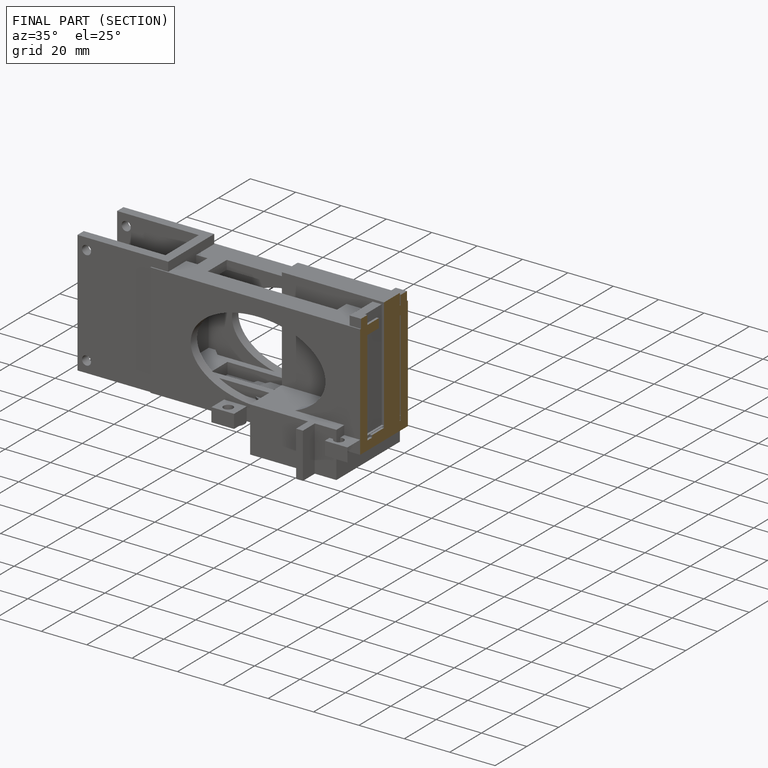
[diagram: finished part — half-section view (interior)]
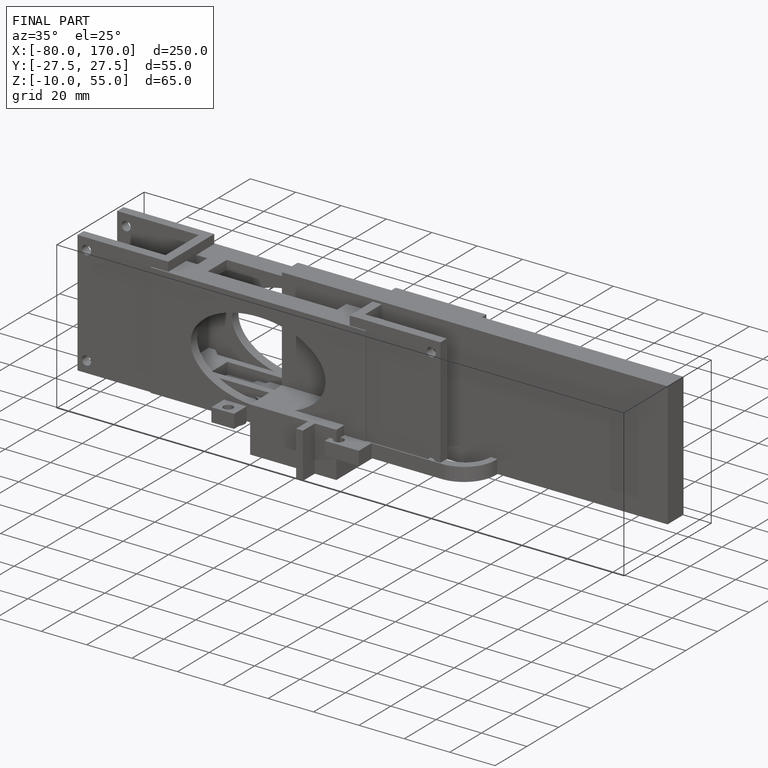
[diagram: finished part — iso view with bounding-box wireframe]
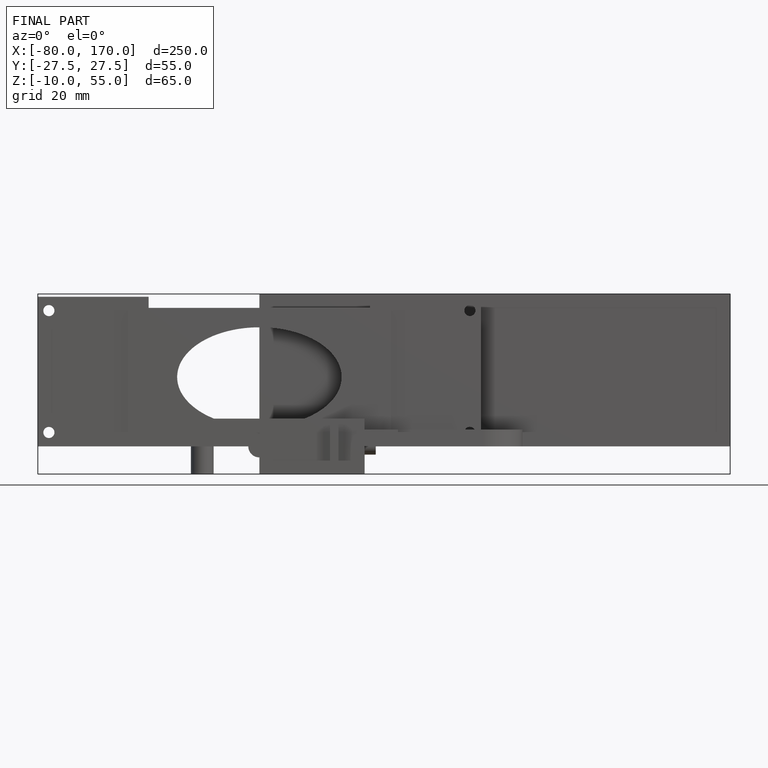
[diagram: finished part — front view with bounding-box wireframe]
